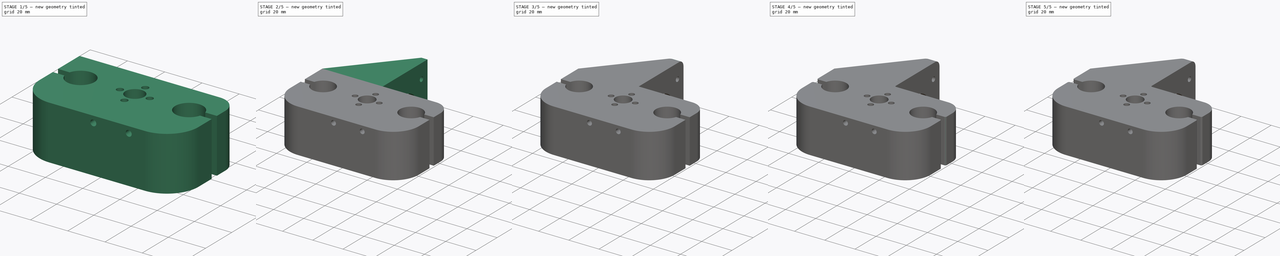
[diagram: build sequence overview — one tinted view per stage of 5, left to right]
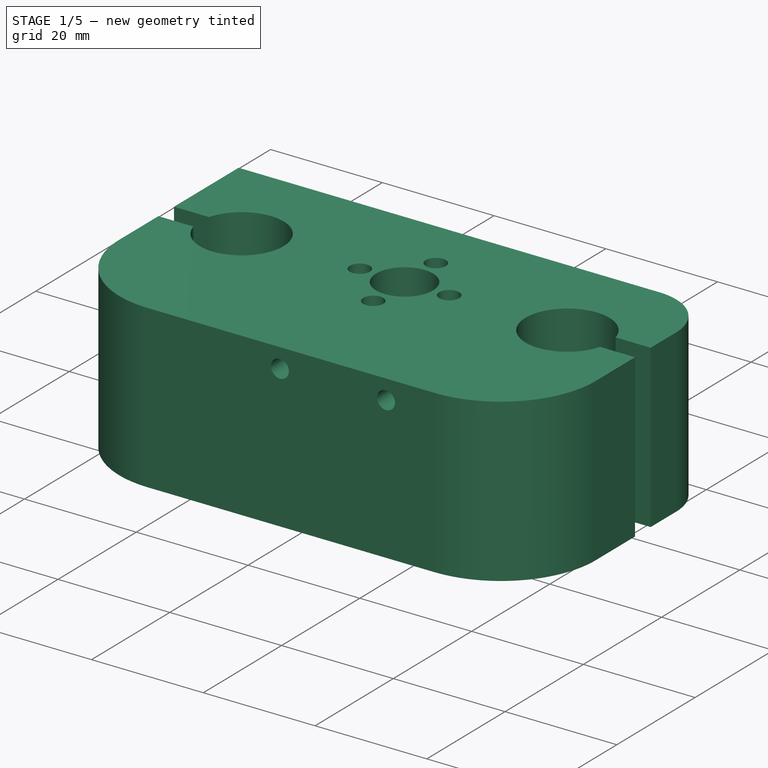
[diagram: stage 1 of 5 — iso view after this stage's code; geometry added in this stage tinted green]
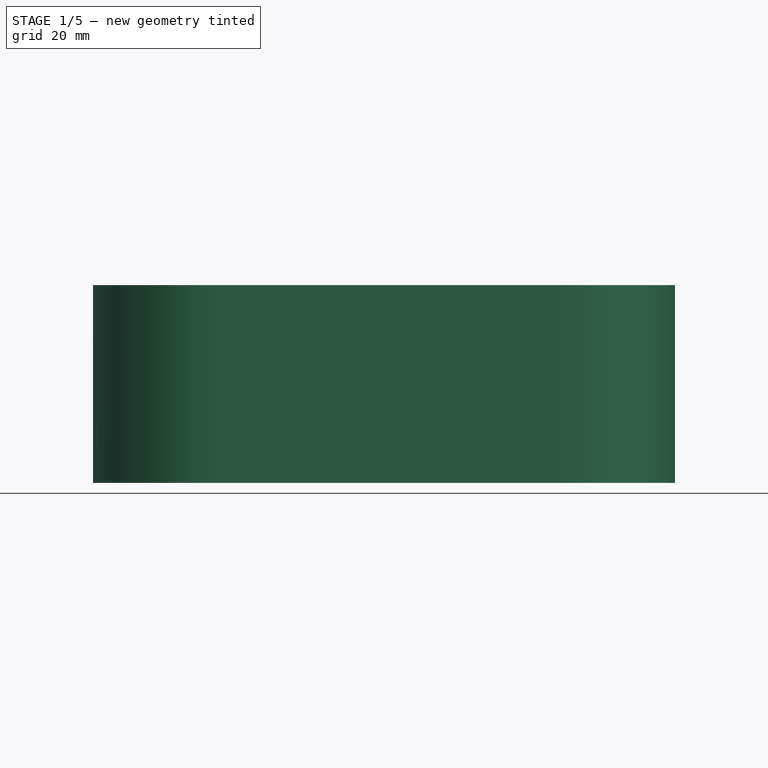
[diagram: stage 1 of 5 — front view after this stage's code; geometry added in this stage tinted green]
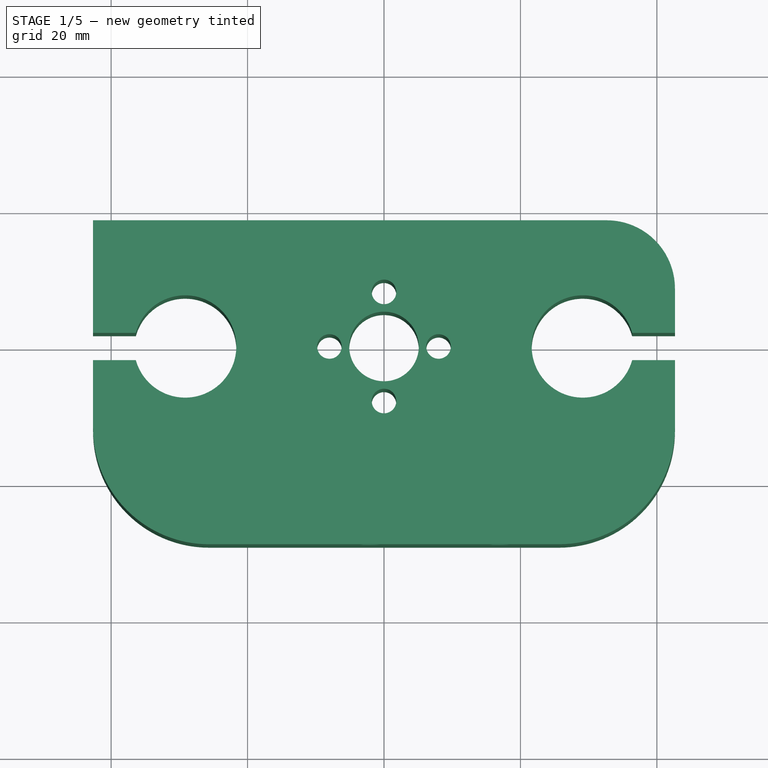
[diagram: stage 1 of 5 — top view after this stage's code; geometry added in this stage tinted green]
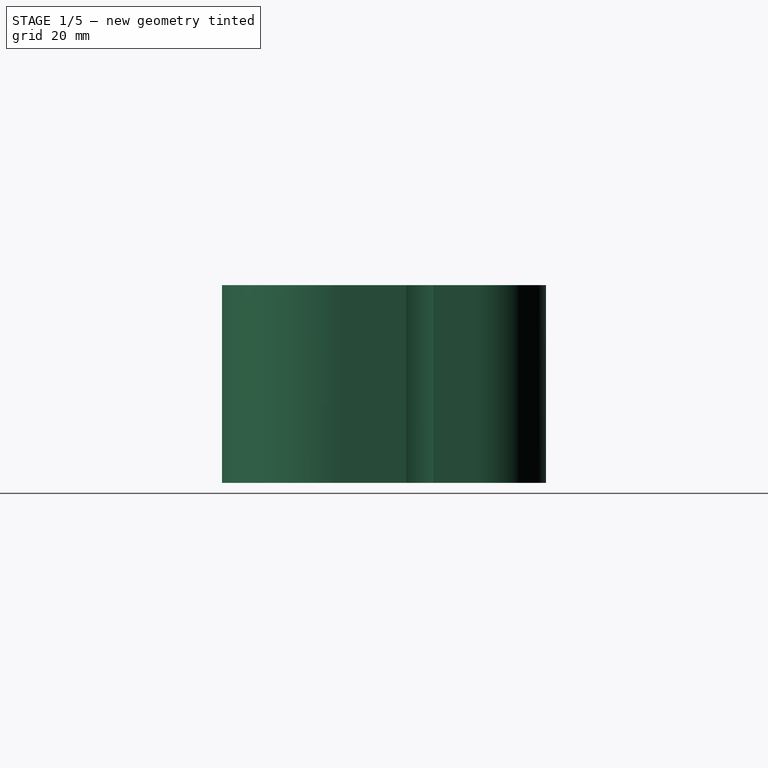
[diagram: stage 1 of 5 — right view after this stage's code; geometry added in this stage tinted green]
FCSTD DOCUMENT  (FreeCAD 1.0R39109 (Git))
Label: head
License: All rights reserved
LicenseURL: https://en.wikipedia.org/wiki/All_rights_reserved
objects: Sketcher::SketchObject×10, PartDesign::Fillet×7, PartDesign::Pad×4, PartDesign::Pocket×4, PartDesign::Chamfer×1, PartDesign::Body×1
note: 69 computed .brp shape members not serialized (recipe doc carries the construction recipe); baked Part::Feature solids carry a one-line shape summary decoded from their .brp

FEATURE [Sketcher::SketchObject] Sketch
  ArcFitTolerance = 1e-06
  AttachmentSupport = -> [XY_Plane]
  FullyConstrained = true
  MakeInternals = false
  MapMode = 5
  sketch-geometry (53):
    g0: Circle CenterX=0 CenterY=0 CenterZ=0 NormalX=0 NormalY=0 NormalZ=1 AngleXU=0 Radius=5.1
    g1: Circle [constr] CenterX=0 CenterY=0 CenterZ=0 NormalX=0 NormalY=0 NormalZ=1 AngleXU=0 Radius=8
    g2: Circle [constr] CenterX=0 CenterY=0 CenterZ=0 NormalX=0 NormalY=0 NormalZ=1 AngleXU=0 Radius=11
    g3: LineSegment [constr] StartX=0 StartY=0 StartZ=0 EndX=0 EndY=8 EndZ=0
    g4: LineSegment [constr] StartX=0 StartY=0 StartZ=0 EndX=0 EndY=-8 EndZ=0
    g5: LineSegment [constr] StartX=0 StartY=0 StartZ=0 EndX=8 EndY=0 EndZ=0
    g6: LineSegment [constr] StartX=0 StartY=0 StartZ=0 EndX=-8 EndY=0 EndZ=0
    g7: Circle CenterX=0 CenterY=8 CenterZ=0 NormalX=0 NormalY=0 NormalZ=1 AngleXU=0 Radius=1.8
    g8: Circle CenterX=8 CenterY=0 CenterZ=0 NormalX=0 NormalY=0 NormalZ=1 AngleXU=0 Radius=1.8
    g9: Circle CenterX=0 CenterY=-8 CenterZ=0 NormalX=0 NormalY=0 NormalZ=1 AngleXU=0 Radius=1.8
    g10: Circle CenterX=-8 CenterY=0 CenterZ=0 NormalX=0 NormalY=0 NormalZ=1 AngleXU=0 Radius=1.8
    g11: LineSegment [constr] StartX=0 StartY=0 StartZ=0 EndX=-29.15 EndY=0 EndZ=0
    g12: Circle CenterX=-29.15 CenterY=0 CenterZ=0 NormalX=0 NormalY=0 NormalZ=1 AngleXU=0 Radius=7.5
    g13: LineSegment [constr] StartX=0 StartY=0 StartZ=0 EndX=0 EndY=-29 EndZ=0
    g14: LineSegment [constr] StartX=0 StartY=0 StartZ=0 EndX=29.15 EndY=0 EndZ=0
    g15: Circle CenterX=29.15 CenterY=0 CenterZ=0 NormalX=0 NormalY=0 NormalZ=1 AngleXU=0 Radius=7.5
    g16: LineSegment [constr] StartX=-29.15 StartY=0 StartZ=0 EndX=-42.65 EndY=0 EndZ=0
    g17: LineSegment [constr] StartX=29.15 StartY=0 StartZ=0 EndX=42.65 EndY=0 EndZ=0
    g18: LineSegment [constr] StartX=42.65 StartY=0 StartZ=0 EndX=42.65 EndY=2 EndZ=0
    g19: LineSegment [constr] StartX=-42.65 StartY=0 StartZ=0 EndX=-42.65 EndY=2 EndZ=0
    g20: LineSegment [constr] StartX=-42.65 StartY=2 StartZ=0 EndX=-36.3784 EndY=2 EndZ=0
    g21: LineSegment [constr] StartX=-42.65 StartY=2 StartZ=0 EndX=-42.65 EndY=-2 EndZ=0
    g22: LineSegment [constr] StartX=-42.65 StartY=-2 StartZ=0 EndX=-36.3784 EndY=-2 EndZ=0
    g23: LineSegment [constr] StartX=42.65 StartY=2 StartZ=0 EndX=36.3784 EndY=2 EndZ=0
    g24: LineSegment [constr] StartX=42.65 StartY=2 StartZ=0 EndX=42.65 EndY=-2 EndZ=0
    g25: LineSegment [constr] StartX=42.65 StartY=-2 StartZ=0 EndX=36.3784 EndY=-2 EndZ=0
    g26: LineSegment [constr] StartX=36.3784 StartY=2 StartZ=0 EndX=36.3784 EndY=-2 EndZ=0
    g27: LineSegment [constr] StartX=-36.3784 StartY=2 StartZ=0 EndX=-36.3784 EndY=-2 EndZ=0
    g28: LineSegment StartX=0 StartY=-29 StartZ=0 EndX=25 EndY=-29 EndZ=0
    g29: LineSegment StartX=0 StartY=-29 StartZ=0 EndX=-25 EndY=-29 EndZ=0
    g30: LineSegment [constr] StartX=0 StartY=0 StartZ=0 EndX=0 EndY=18.5 EndZ=0
    g31: LineSegment StartX=42.65 StartY=0 StartZ=0 EndX=42.65 EndY=8.5 EndZ=0
    g32: LineSegment StartX=-42.65 StartY=0 StartZ=0 EndX=-42.65 EndY=18.5 EndZ=0
    g33: LineSegment StartX=-42.65 StartY=18.5 StartZ=0 EndX=0 EndY=18.5 EndZ=0
    g34: LineSegment StartX=0 StartY=18.5 StartZ=0 EndX=32.65 EndY=18.5 EndZ=0
    g35: LineSegment StartX=42.65 StartY=0 StartZ=0 EndX=42.65 EndY=-13 EndZ=0
    g36: LineSegment StartX=26.65 StartY=-29 StartZ=0 EndX=25 EndY=-29 EndZ=0
    g37: LineSegment StartX=-42.65 StartY=0 StartZ=0 EndX=-42.65 EndY=-13 EndZ=0
    g38: LineSegment StartX=-26.65 StartY=-29 StartZ=0 EndX=-25 EndY=-29 EndZ=0
    g39: ArcOfCircle CenterX=-26.65 CenterY=-13 CenterZ=0 NormalX=0 NormalY=0 NormalZ=1 AngleXU=0 Radius=16 StartAngle=3.14159 EndAngle=4.71239
    g40: GeomPoint [constr] X=-42.65 Y=-29 Z=0
    g41: ArcOfCircle CenterX=26.65 CenterY=-13 CenterZ=0 NormalX=0 NormalY=0 NormalZ=1 AngleXU=0 Radius=16 StartAngle=4.71239 EndAngle=6.28319
    g42: GeomPoint [constr] X=42.65 Y=-29 Z=0
    g43: LineSegment StartX=-42.65 StartY=18.5 StartZ=0 EndX=-6.65 EndY=18.5 EndZ=0
    g44: LineSegment StartX=-6.65 StartY=18.5 StartZ=0 EndX=-2.65 EndY=18.5 EndZ=0
    g45: LineSegment [constr] StartX=-2.65 StartY=18.5 StartZ=0 EndX=-2.65 EndY=62 EndZ=0
    g46: LineSegment [constr] StartX=-2.65 StartY=62 StartZ=0 EndX=-6.65 EndY=62 EndZ=0
    g47: LineSegment [constr] StartX=-6.65 StartY=62 StartZ=0 EndX=-6.65 EndY=18.5 EndZ=0
    g48: LineSegment StartX=-42.65 StartY=18.5 StartZ=0 EndX=-6.65 EndY=18.5 EndZ=0
    g49: LineSegment StartX=-2.65 StartY=18.5 StartZ=0 EndX=0 EndY=18.5 EndZ=0
    g50: LineSegment [constr] StartX=-6.65 StartY=62 StartZ=0 EndX=-42.65 EndY=18.5 EndZ=0
    g51: ArcOfCircle CenterX=32.65 CenterY=8.5 CenterZ=0 NormalX=0 NormalY=0 NormalZ=1 AngleXU=0 Radius=10 StartAngle=0 EndAngle=1.5708
    g52: GeomPoint [constr] X=42.65 Y=18.5 Z=0
  constraints (134):
    c: Diameter(g0) = 10.2
    c: Coincident(g0,g-1)
    c: Diameter(g1) = 16
    c: Coincident(g1,g0)
    c: Diameter(g2) = 22
    c: Coincident(g2,g0)
    c: Coincident(g3,g0)
    c: PointOnObject(g3,g1)
    c: Vertical(g3)
    c: Coincident(g4,g0)
    c: PointOnObject(g4,g1)
    c: Vertical(g4)
    c: Coincident(g5,g0)
    c: PointOnObject(g5,g1)
    c: Horizontal(g5)
    c: Coincident(g6,g0)
    c: PointOnObject(g6,g1)
    c: Horizontal(g6)
    c: Diameter(g7) = 3.6
    c: Coincident(g7,g3)
    c: Diameter(g8) = 3.6
    c: Coincident(g8,g5)
    c: Diameter(g9) = 3.6
    c: Coincident(g9,g4)
    c: Diameter(g10) = 3.6
    c: Coincident(g10,g6)
    c: Distance(g11) = 29.15
    c: Coincident(g11,g0)
    c: PointOnObject(g11,g-1)
    c: Diameter(g12) = 15
    c: Coincident(g12,g11)
    c: Distance(g13) = 29
    c: Coincident(g13,g0)
    c: PointOnObject(g13,g-2)
    c: Distance(g14) = 29.15
    c: Coincident(g14,g0)
    c: PointOnObject(g14,g-1)
    c: Diameter(g15) = 15
    c: Coincident(g15,g14)
    c: Distance(g16) = 13.5
    c: Coincident(g16,g11)
    c: PointOnObject(g16,g-1)
    c: Distance(g17) = 13.5
    c: Coincident(g17,g14)
    c: PointOnObject(g17,g-1)
    c: Distance(g18) = 2
    c: Coincident(g18,g17)
    c: Vertical(g18)
    c: Distance(g19) = 2
    c: Coincident(g19,g16)
    c: Vertical(g19)
    c: Coincident(g20,g19)
    c: PointOnObject(g20,g12)
    c: Horizontal(g20)
    c: Distance(g21) = 4
    c: Coincident(g21,g19)
    c: Vertical(g21)
    c: Coincident(g22,g21)
    c: PointOnObject(g22,g12)
    c: Horizontal(g22)
    c: Coincident(g23,g18)
    c: PointOnObject(g23,g15)
    c: Horizontal(g23)
    c: Distance(g24) = 4
    c: Coincident(g24,g18)
    c: Vertical(g24)
    c: Coincident(g25,g24)
    c: PointOnObject(g25,g15)
    c: Horizontal(g25)
    c: Coincident(g26,g23)
    c: Coincident(g26,g25)
    c: Coincident(g27,g20)
    c: Coincident(g27,g22)
    c: Distance(g28) = 25
    c: Coincident(g28,g13)
    c: Horizontal(g28)
    c: Distance(g29) = 25
    c: Coincident(g29,g13)
    c: Horizontal(g29)
    c: Distance(g30) = 18.5
    c: Coincident(g30,g0)
    c: PointOnObject(g30,g-2)
    c: Distance(g31,g52) = 18.5
    c: Coincident(g31,g17)
    c: Vertical(g31)
    c: Distance(g32) = 18.5
    c: Coincident(g32,g16)
    c: Vertical(g32)
    c: Coincident(g33,g32)
    c: Coincident(g33,g30)
    c: Coincident(g34,g30)
    c: Distance(g35,g42) = 29
    c: Coincident(g35,g17)
    c: Vertical(g35)
    c: Coincident(g36,g28)
    c: Distance(g37,g40) = 29
    c: Coincident(g37,g16)
    c: Vertical(g37)
    c: Coincident(g38,g29)
    c: PointOnObject(g40,g37)
    c: PointOnObject(g40,g38)
    c: Tangent(g37,g39) = -1.5708
    c: Tangent(g38,g39) = -1.5708
    c: PointOnObject(g42,g36)
    c: PointOnObject(g42,g35)
    c: Tangent(g36,g41) = 1.5708
    c: Tangent(g35,g41) = 1.5708
    c: DistanceX(g37,g39) = 16
    c: Distance(g41,g35) = 16
    c: Distance(g43) = 36
    c: Coincident(g43,g32)
    c: PointOnObject(g43,g33)
    c: Coincident(g44,g45)
    c: Coincident(g45,g46)
    c: Coincident(g46,g47)
    c: Coincident(g47,g44)
    c: Horizontal(g44)
    c: Horizontal(g46)
    c: Vertical(g45)
    c: Vertical(g47)
    c: Distance(g45,g47) = 4
    c: Distance(g44,g46) = 43.5
    c: Coincident(g44,g43)
    c: Coincident(g48,g32)
    c: Coincident(g48,g43)
    c: Coincident(g49,g44)
    c: Coincident(g49,g30)
    c: Coincident(g50,g46)
    c: Coincident(g50,g32)
    c: PointOnObject(g52,g34)
    c: PointOnObject(g52,g31)
    c: Tangent(g34,g51) = 1.5708
    c: Tangent(g31,g51) = -1.5708
    c: Distance(g51,g31) = 10
FEATURE [Sketcher::SketchObject] Sketch001
  ArcFitTolerance = 1e-06
  AttachmentSupport = -> [XY_Plane]
  FullyConstrained = true
  MakeInternals = false
  MapMode = 5
  sketch-geometry (35):
    g0: Circle CenterX=0 CenterY=0 CenterZ=0 NormalX=0 NormalY=0 NormalZ=1 AngleXU=0 Radius=5.1
    g1: Circle [constr] CenterX=0 CenterY=0 CenterZ=0 NormalX=0 NormalY=0 NormalZ=1 AngleXU=0 Radius=8
    g2: Circle [constr] CenterX=0 CenterY=0 CenterZ=0 NormalX=0 NormalY=0 NormalZ=1 AngleXU=0 Radius=11
    g3: LineSegment [constr] StartX=0 StartY=0 StartZ=0 EndX=0 EndY=8 EndZ=0
    g4: LineSegment [constr] StartX=0 StartY=0 StartZ=0 EndX=8 EndY=0 EndZ=0
    g5: LineSegment [constr] StartX=0 StartY=0 StartZ=0 EndX=-8 EndY=0 EndZ=0
    g6: LineSegment [constr] StartX=0 StartY=0 StartZ=0 EndX=0 EndY=-8 EndZ=0
    g7: Circle CenterX=0 CenterY=8 CenterZ=0 NormalX=0 NormalY=0 NormalZ=1 AngleXU=0 Radius=1.8
    g8: Circle CenterX=8 CenterY=0 CenterZ=0 NormalX=0 NormalY=0 NormalZ=1 AngleXU=0 Radius=1.8
    g9: Circle CenterX=-8 CenterY=0 CenterZ=0 NormalX=0 NormalY=0 NormalZ=1 AngleXU=0 Radius=1.8
    g10: Circle CenterX=0 CenterY=-8 CenterZ=0 NormalX=0 NormalY=0 NormalZ=1 AngleXU=0 Radius=1.8
    g11: LineSegment [constr] StartX=0 StartY=0 StartZ=0 EndX=29.15 EndY=0 EndZ=0
    g12: LineSegment [constr] StartX=0 StartY=0 StartZ=0 EndX=-29.15 EndY=0 EndZ=0
    g13: Circle CenterX=-29.15 CenterY=0 CenterZ=0 NormalX=0 NormalY=0 NormalZ=1 AngleXU=0 Radius=7.5
    g14: Circle CenterX=29.15 CenterY=0 CenterZ=0 NormalX=0 NormalY=0 NormalZ=1 AngleXU=0 Radius=7.5
    g15: LineSegment [constr] StartX=0 StartY=0 StartZ=0 EndX=0 EndY=-29 EndZ=0
    g16: LineSegment StartX=0 StartY=-29 StartZ=0 EndX=25 EndY=-29 EndZ=0
    g17: LineSegment StartX=0 StartY=-29 StartZ=0 EndX=-25 EndY=-29 EndZ=0
    g18: LineSegment [constr] StartX=0 StartY=0 StartZ=0 EndX=0 EndY=18.5 EndZ=0
    g19: LineSegment [constr] StartX=29.15 StartY=0 StartZ=0 EndX=42.65 EndY=0 EndZ=0
    g20: LineSegment [constr] StartX=-29.15 StartY=0 StartZ=0 EndX=-42.65 EndY=0 EndZ=0
    g21: LineSegment StartX=-42.65 StartY=0 StartZ=0 EndX=-42.65 EndY=18.5 EndZ=0
    g22: LineSegment StartX=42.65 StartY=0 StartZ=0 EndX=42.65 EndY=8.5 EndZ=0
    g23: LineSegment StartX=32.65 StartY=18.5 StartZ=0 EndX=0 EndY=18.5 EndZ=0
    g24: LineSegment StartX=0 StartY=18.5 StartZ=0 EndX=-42.65 EndY=18.5 EndZ=0
    g25: LineSegment StartX=-42.65 StartY=0 StartZ=0 EndX=-42.65 EndY=-12 EndZ=0
    g26: LineSegment StartX=-25.65 StartY=-29 StartZ=0 EndX=-25 EndY=-29 EndZ=0
    g27: LineSegment StartX=42.65 StartY=0 StartZ=0 EndX=42.65 EndY=-12 EndZ=0
    g28: LineSegment StartX=25.65 StartY=-29 StartZ=0 EndX=25 EndY=-29 EndZ=0
    g29: ArcOfCircle CenterX=25.65 CenterY=-12 CenterZ=0 NormalX=0 NormalY=0 NormalZ=1 AngleXU=0 Radius=17 StartAngle=4.71239 EndAngle=6.28319
    g30: GeomPoint [constr] X=42.65 Y=-29 Z=0
    g31: ArcOfCircle CenterX=-25.65 CenterY=-12 CenterZ=0 NormalX=0 NormalY=0 NormalZ=1 AngleXU=0 Radius=17 StartAngle=3.14159 EndAngle=4.71239
    g32: GeomPoint [constr] X=-42.65 Y=-29 Z=0
    g33: ArcOfCircle CenterX=32.65 CenterY=8.5 CenterZ=0 NormalX=0 NormalY=0 NormalZ=1 AngleXU=0 Radius=10 StartAngle=0 EndAngle=1.5708
    g34: GeomPoint [constr] X=42.65 Y=18.5 Z=0
  constraints (86):
    c: Diameter(g0) = 10.2
    c: Coincident(g0,g-1)
    c: Diameter(g1) = 16
    c: Coincident(g1,g0)
    c: Diameter(g2) = 22
    c: Coincident(g2,g0)
    c: Coincident(g3,g0)
    c: PointOnObject(g3,g1)
    c: Vertical(g3)
    c: Coincident(g4,g0)
    c: PointOnObject(g4,g1)
    c: Horizontal(g4)
    c: Coincident(g5,g0)
    c: PointOnObject(g5,g1)
    c: Horizontal(g5)
    c: Coincident(g6,g0)
    c: PointOnObject(g6,g1)
    c: Vertical(g6)
    c: Diameter(g7) = 3.6
    c: Coincident(g7,g3)
    c: Diameter(g8) = 3.6
    c: Coincident(g8,g4)
    c: Diameter(g9) = 3.6
    c: Coincident(g9,g5)
    c: Diameter(g10) = 3.6
    c: Coincident(g10,g6)
    c: Distance(g11) = 29.15
    c: Coincident(g11,g0)
    c: PointOnObject(g11,g-1)
    c: Distance(g12) = 29.15
    c: Coincident(g12,g0)
    c: PointOnObject(g12,g-1)
    c: Diameter(g13) = 15
    c: Coincident(g13,g12)
    c: Diameter(g14) = 15
    c: Coincident(g14,g11)
    c: Distance(g15) = 29
    c: Coincident(g15,g0)
    c: PointOnObject(g15,g-2)
    c: Distance(g16) = 25
    c: Coincident(g16,g15)
    c: Horizontal(g16)
    c: Distance(g17) = 25
    c: Coincident(g17,g15)
    c: Horizontal(g17)
    c: Distance(g18) = 18.5
    c: Coincident(g18,g0)
    c: PointOnObject(g18,g-2)
    c: Distance(g19) = 13.5
    c: Coincident(g19,g11)
    c: PointOnObject(g19,g-1)
    c: Distance(g20) = 13.5
    c: Coincident(g20,g12)
    c: PointOnObject(g20,g-1)
    c: Distance(g21) = 18.5
    c: Coincident(g21,g20)
    c: Vertical(g21)
    c: Distance(g22,g34) = 18.5
    c: Coincident(g22,g19)
    c: Vertical(g22)
    c: Coincident(g23,g18)
    c: Coincident(g24,g18)
    c: Coincident(g24,g21)
    c: Distance(g25,g32) = 29
    c: Coincident(g25,g20)
    c: Vertical(g25)
    c: Coincident(g26,g17)
    c: Distance(g27,g30) = 29
    c: Coincident(g27,g19)
    c: Vertical(g27)
    c: Coincident(g28,g16)
    c: PointOnObject(g30,g27)
    c: PointOnObject(g30,g28)
    c: Tangent(g27,g29) = 1.5708
    c: Tangent(g28,g29) = 1.5708
    c: PointOnObject(g32,g25)
    c: PointOnObject(g32,g26)
    c: Tangent(g25,g31) = -1.5708
    c: Tangent(g26,g31) = -1.5708
    c: DistanceX(g25,g31) = 17
    c: Distance(g29,g27) = 17
    c: PointOnObject(g34,g22)
    c: PointOnObject(g34,g23)
    c: Tangent(g22,g33) = -1.5708
    c: Tangent(g23,g33) = -1.5708
    c: DistanceX(g33,g22) = 10
FEATURE [PartDesign::Pad] Pad
  Direction = (0,0,1)
  Length = 29
  Length2 = 10
  Profile = -> Sketch001
  ReferenceAxis = -> Sketch001 [N_Axis]
  Refine = true
  Reversed = true
  Suppressed = false
  Type = 0
FEATURE [Sketcher::SketchObject] Sketch002
  ArcFitTolerance = 1e-06
  AttachmentSupport = -> [Pad]
  FullyConstrained = true
  MakeInternals = false
  MapMode = 5
  sketch-geometry (45):
    g0: Circle [constr] CenterX=0 CenterY=0 CenterZ=0 NormalX=0 NormalY=0 NormalZ=1 AngleXU=0 Radius=5.1
    g1: Circle [constr] CenterX=0 CenterY=0 CenterZ=0 NormalX=0 NormalY=0 NormalZ=1 AngleXU=0 Radius=8
    g2: Circle [constr] CenterX=0 CenterY=0 CenterZ=0 NormalX=0 NormalY=0 NormalZ=1 AngleXU=0 Radius=11
    g3: LineSegment [constr] StartX=0 StartY=0 StartZ=0 EndX=0 EndY=8 EndZ=0
    g4: LineSegment [constr] StartX=0 StartY=0 StartZ=0 EndX=8 EndY=0 EndZ=0
    g5: LineSegment [constr] StartX=0 StartY=0 StartZ=0 EndX=-8 EndY=0 EndZ=0
    g6: LineSegment [constr] StartX=0 StartY=0 StartZ=0 EndX=0 EndY=-8 EndZ=0
    g7: Circle [constr] CenterX=0 CenterY=8 CenterZ=0 NormalX=0 NormalY=0 NormalZ=1 AngleXU=0 Radius=1.8
    g8: Circle [constr] CenterX=8 CenterY=0 CenterZ=0 NormalX=0 NormalY=0 NormalZ=1 AngleXU=0 Radius=1.8
    g9: Circle [constr] CenterX=-8 CenterY=0 CenterZ=0 NormalX=0 NormalY=0 NormalZ=1 AngleXU=0 Radius=1.8
    g10: Circle [constr] CenterX=0 CenterY=-8 CenterZ=0 NormalX=0 NormalY=0 NormalZ=1 AngleXU=0 Radius=1.8
    g11: LineSegment [constr] StartX=0 StartY=0 StartZ=0 EndX=29.15 EndY=0 EndZ=0
    g12: LineSegment [constr] StartX=0 StartY=0 StartZ=0 EndX=-29.15 EndY=0 EndZ=0
    g13: Circle [constr] CenterX=-29.15 CenterY=0 CenterZ=0 NormalX=0 NormalY=0 NormalZ=1 AngleXU=0 Radius=7.5
    g14: Circle [constr] CenterX=29.15 CenterY=0 CenterZ=0 NormalX=0 NormalY=0 NormalZ=1 AngleXU=0 Radius=7.5
    g15: LineSegment [constr] StartX=0 StartY=0 StartZ=0 EndX=0 EndY=-29 EndZ=0
    g16: LineSegment [constr] StartX=0 StartY=-29 StartZ=0 EndX=25 EndY=-29 EndZ=0
    g17: LineSegment [constr] StartX=0 StartY=-29 StartZ=0 EndX=-25 EndY=-29 EndZ=0
    g18: LineSegment [constr] StartX=0 StartY=0 StartZ=0 EndX=0 EndY=18.5 EndZ=0
    g19: LineSegment [constr] StartX=29.15 StartY=0 StartZ=0 EndX=42.65 EndY=0 EndZ=0
    g20: LineSegment [constr] StartX=-29.15 StartY=0 StartZ=0 EndX=-42.65 EndY=0 EndZ=0
    g21: LineSegment [constr] StartX=-42.65 StartY=0 StartZ=0 EndX=-42.65 EndY=18.5 EndZ=0
    g22: LineSegment [constr] StartX=42.65 StartY=0 StartZ=0 EndX=42.65 EndY=8.5 EndZ=0
    g23: LineSegment [constr] StartX=32.65 StartY=18.5 StartZ=0 EndX=0 EndY=18.5 EndZ=0
    g24: LineSegment [constr] StartX=0 StartY=18.5 StartZ=0 EndX=-42.65 EndY=18.5 EndZ=0
    g25: LineSegment [constr] StartX=-42.65 StartY=0 StartZ=0 EndX=-42.65 EndY=-12 EndZ=0
    g26: LineSegment [constr] StartX=-25.65 StartY=-29 StartZ=0 EndX=-25 EndY=-29 EndZ=0
    g27: LineSegment [constr] StartX=42.65 StartY=0 StartZ=0 EndX=42.65 EndY=-12 EndZ=0
    g28: LineSegment [constr] StartX=25.65 StartY=-29 StartZ=0 EndX=25 EndY=-29 EndZ=0
    g29: ArcOfCircle [constr] CenterX=25.65 CenterY=-12 CenterZ=0 NormalX=0 NormalY=0 NormalZ=1 AngleXU=0 Radius=17 StartAngle=4.71239 EndAngle=6.28319
    g30: GeomPoint [constr] X=42.65 Y=-29 Z=0
    g31: ArcOfCircle [constr] CenterX=-25.65 CenterY=-12 CenterZ=0 NormalX=0 NormalY=0 NormalZ=1 AngleXU=0 Radius=17 StartAngle=3.14159 EndAngle=4.71239
    g32: GeomPoint [constr] X=-42.65 Y=-29 Z=0
    g33: ArcOfCircle [constr] CenterX=32.65 CenterY=8.5 CenterZ=0 NormalX=0 NormalY=0 NormalZ=1 AngleXU=0 Radius=10 StartAngle=0 EndAngle=1.5708
    g34: GeomPoint [constr] X=42.65 Y=18.5 Z=0
    g35: LineSegment [constr] StartX=42.65 StartY=0 StartZ=0 EndX=42.65 EndY=2 EndZ=0
    g36: LineSegment StartX=42.65 StartY=2 StartZ=0 EndX=35.65 EndY=2 EndZ=0
    g37: LineSegment StartX=35.65 StartY=2 StartZ=0 EndX=35.65 EndY=-2 EndZ=0
    g38: LineSegment StartX=35.65 StartY=-2 StartZ=0 EndX=42.65 EndY=-2 EndZ=0
    g39: LineSegment StartX=42.65 StartY=-2 StartZ=0 EndX=42.65 EndY=2 EndZ=0
    g40: LineSegment [constr] StartX=-42.65 StartY=0 StartZ=0 EndX=-42.65 EndY=2 EndZ=0
    g41: LineSegment StartX=-42.65 StartY=2 StartZ=0 EndX=-42.65 EndY=-2 EndZ=0
    g42: LineSegment StartX=-42.65 StartY=-2 StartZ=0 EndX=-35.65 EndY=-2 EndZ=0
    g43: LineSegment StartX=-35.65 StartY=-2 StartZ=0 EndX=-35.65 EndY=2 EndZ=0
    g44: LineSegment StartX=-35.65 StartY=2 StartZ=0 EndX=-42.65 EndY=2 EndZ=0
  constraints (114):
    c: Diameter(g0) = 10.2
    c: Coincident(g0,g-1)
    c: Diameter(g1) = 16
    c: Coincident(g1,g0)
    c: Diameter(g2) = 22
    c: Coincident(g2,g0)
    c: Coincident(g3,g0)
    c: PointOnObject(g3,g1)
    c: Vertical(g3)
    c: Coincident(g4,g0)
    c: PointOnObject(g4,g1)
    c: Horizontal(g4)
    c: Coincident(g5,g0)
    c: PointOnObject(g5,g1)
    c: Horizontal(g5)
    c: Coincident(g6,g0)
    c: PointOnObject(g6,g1)
    c: Vertical(g6)
    c: Diameter(g7) = 3.6
    c: Coincident(g7,g3)
    c: Diameter(g8) = 3.6
    c: Coincident(g8,g4)
    c: Diameter(g9) = 3.6
    c: Coincident(g9,g5)
    c: Diameter(g10) = 3.6
    c: Coincident(g10,g6)
    c: Distance(g11) = 29.15
    c: Coincident(g11,g0)
    c: PointOnObject(g11,g-1)
    c: Distance(g12) = 29.15
    c: Coincident(g12,g0)
    c: PointOnObject(g12,g-1)
    c: Diameter(g13) = 15
    c: Coincident(g13,g12)
    c: Diameter(g14) = 15
    c: Coincident(g14,g11)
    c: Distance(g15) = 29
    c: Coincident(g15,g0)
    c: PointOnObject(g15,g-2)
    c: Distance(g16) = 25
    c: Coincident(g16,g15)
    c: Horizontal(g16)
    c: Distance(g17) = 25
    c: Coincident(g17,g15)
    c: Horizontal(g17)
    c: Distance(g18) = 18.5
    c: Coincident(g18,g0)
    c: PointOnObject(g18,g-2)
    c: Distance(g19) = 13.5
    c: Coincident(g19,g11)
    c: PointOnObject(g19,g-1)
    c: Distance(g20) = 13.5
    c: Coincident(g20,g12)
    c: PointOnObject(g20,g-1)
    c: Distance(g21) = 18.5
    c: Coincident(g21,g20)
    c: Vertical(g21)
    c: Distance(g22,g34) = 18.5
    c: Coincident(g22,g19)
    c: Vertical(g22)
    c: Coincident(g23,g18)
    c: Coincident(g24,g18)
    c: Coincident(g24,g21)
    c: Distance(g25,g32) = 29
    c: Coincident(g25,g20)
    c: Vertical(g25)
    c: Coincident(g26,g17)
    c: Distance(g27,g30) = 29
    c: Coincident(g27,g19)
    c: Vertical(g27)
    c: Coincident(g28,g16)
    c: PointOnObject(g30,g27)
    c: PointOnObject(g30,g28)
    c: Tangent(g27,g29) = 1.5708
    c: Tangent(g28,g29) = 1.5708
    c: PointOnObject(g32,g25)
    c: PointOnObject(g32,g26)
    c: Tangent(g25,g31) = -1.5708
    c: Tangent(g26,g31) = -1.5708
    c: DistanceX(g25,g31) = 17
    c: Distance(g29,g27) = 17
    c: PointOnObject(g34,g22)
    c: PointOnObject(g34,g23)
    c: Tangent(g22,g33) = -1.5708
    c: Tangent(g23,g33) = -1.5708
    c: DistanceX(g33,g22) = 10
    c: Distance(g35) = 2
    c: Coincident(g35,g19)
    c: PointOnObject(g35,g22)
    c: Coincident(g36,g37)
    c: Coincident(g37,g38)
    c: Coincident(g38,g39)
    c: Coincident(g39,g36)
    c: Horizontal(g36)
    c: Horizontal(g38)
    c: Vertical(g37)
    c: Vertical(g39)
    c: Distance(g37,g39) = 7
    c: Distance(g36,g38) = 4
    c: Coincident(g36,g35)
    c: Distance(g40) = 2
    c: Coincident(g40,g20)
    c: PointOnObject(g40,g21)
    c: Coincident(g41,g42)
    c: Coincident(g42,g43)
    c: Coincident(g43,g44)
    c: Coincident(g44,g41)
    c: Vertical(g41)
    c: Vertical(g43)
    c: Horizontal(g42)
    c: Horizontal(g44)
    c: Distance(g41,g43) = 7
    c: Distance(g42,g44) = 4
    c: Coincident(g41,g40)
FEATURE [PartDesign::Pocket] Pocket
  BaseFeature = -> Pad
  Direction = (0,0,-1)
  Length = 29
  Length2 = 5
  Profile = -> Sketch002
  ReferenceAxis = -> Sketch002 [N_Axis]
  Refine = true
  Suppressed = false
  Type = 0
FEATURE [Sketcher::SketchObject] Sketch003
  ArcFitTolerance = 1e-06
  AttachmentSupport = -> [Pocket]
  FullyConstrained = true
  MakeInternals = false
  MapMode = 5
  Placement = pos=(0,-29,0) rot=(1,0,0;1.5708rad)
  sketch-geometry (12):
    g0: LineSegment [constr] StartX=0 StartY=0 StartZ=0 EndX=0 EndY=-16.2 EndZ=0
    g1: LineSegment [constr] StartX=-19.7 StartY=-16.2 StartZ=0 EndX=19.7 EndY=-16.2 EndZ=0
    g2: LineSegment [constr] StartX=19.7 StartY=-16.2 StartZ=0 EndX=19.7 EndY=0 EndZ=0
    g3: LineSegment [constr] StartX=19.7 StartY=0 StartZ=0 EndX=-19.7 EndY=0 EndZ=0
    g4: LineSegment [constr] StartX=-19.7 StartY=0 StartZ=0 EndX=-19.7 EndY=-16.2 EndZ=0
    g5: GeomPoint [constr] X=0 Y=-8.1 Z=0
    g6: LineSegment [constr] StartX=-19.7 StartY=0 StartZ=0 EndX=-2 EndY=0 EndZ=0
    g7: LineSegment [constr] StartX=-2 StartY=0 StartZ=0 EndX=17 EndY=0 EndZ=0
    g8: LineSegment [constr] StartX=-2 StartY=0 StartZ=0 EndX=-2 EndY=-3.5 EndZ=0
    g9: LineSegment [constr] StartX=17 StartY=0 StartZ=0 EndX=17 EndY=-3.5 EndZ=0
    g10: Circle CenterX=-2 CenterY=-3.5 CenterZ=0 NormalX=0 NormalY=0 NormalZ=1 AngleXU=0 Radius=1.6
    g11: Circle CenterX=17 CenterY=-3.5 CenterZ=0 NormalX=0 NormalY=0 NormalZ=1 AngleXU=0 Radius=1.6
  constraints (31):
    c: Distance(g0) = 16.2
    c: Coincident(g0,g-1)
    c: Vertical(g0)
    c: Coincident(g1,g2)
    c: Coincident(g2,g3)
    c: Coincident(g3,g4)
    c: Coincident(g4,g1)
    c: Horizontal(g1)
    c: Horizontal(g3)
    c: Vertical(g2)
    c: Vertical(g4)
    c: Symmetric(g3,g1,g5)
    c: Distance(g2,g4) = 39.4
    c: Symmetric(g0,g0,g5)
    c: PointOnObject(g2,g-1)
    c: Distance(g6) = 17.7
    c: Coincident(g6,g3)
    c: PointOnObject(g6,g3)
    c: Distance(g7) = 19
    c: Coincident(g7,g6)
    c: PointOnObject(g7,g3)
    c: Distance(g8) = 3.5
    c: Coincident(g8,g6)
    c: Vertical(g8)
    c: Distance(g9) = 3.5
    c: Coincident(g9,g7)
    c: Vertical(g9)
    c: Diameter(g10) = 3.2
    c: Coincident(g10,g8)
    c: Diameter(g11) = 3.2
    c: Coincident(g11,g9)
FEATURE [PartDesign::Pocket] Pocket001
  BaseFeature = -> Pocket
  Direction = (0,1,-2e-16)
  Length = 5
  Length2 = 5
  Profile = -> Sketch003
  ReferenceAxis = -> Sketch003 [N_Axis]
  Refine = true
  Suppressed = false
  Type = 0
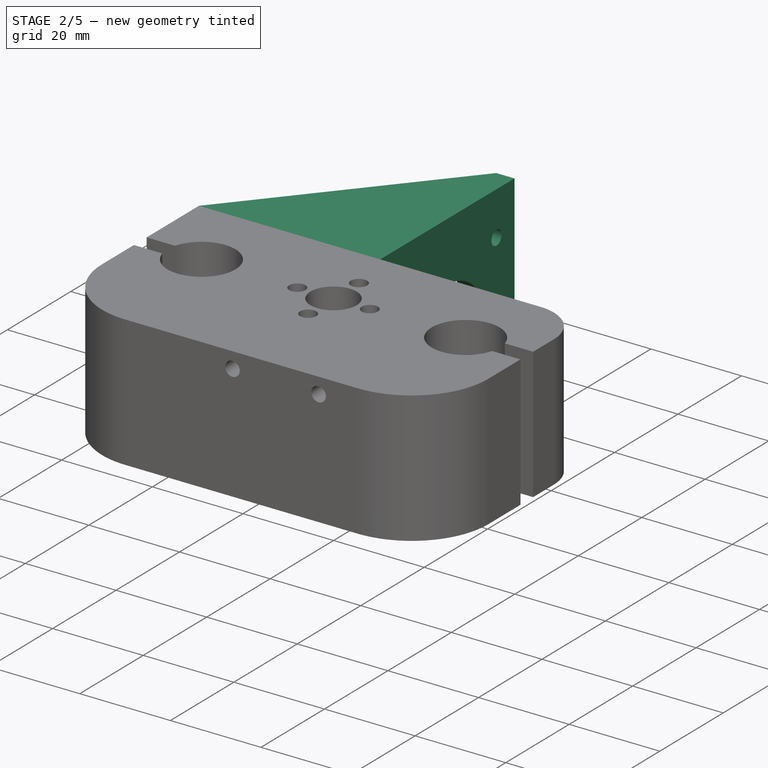
[diagram: stage 2 of 5 — iso view after this stage's code; geometry added in this stage tinted green]
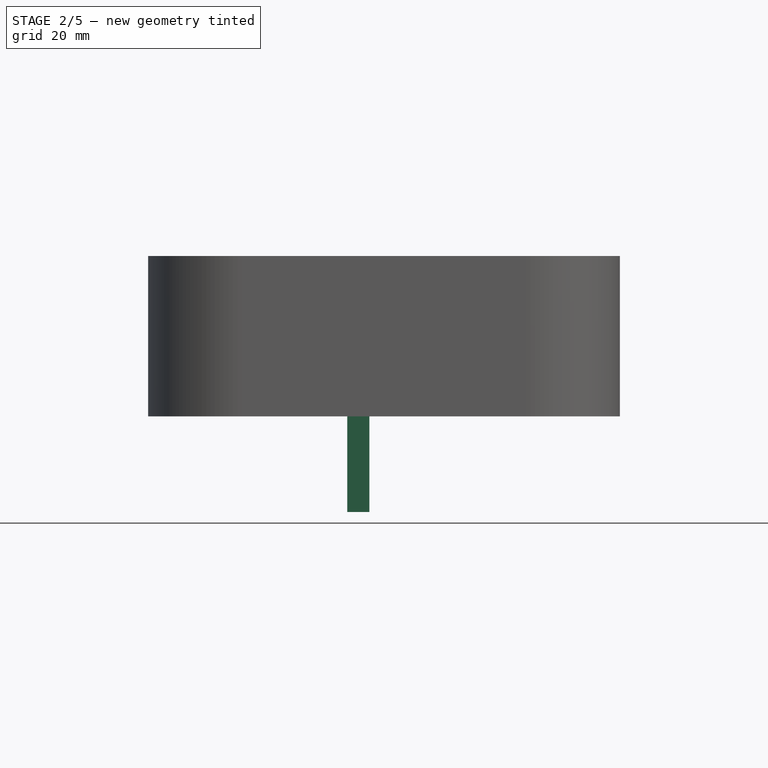
[diagram: stage 2 of 5 — front view after this stage's code; geometry added in this stage tinted green]
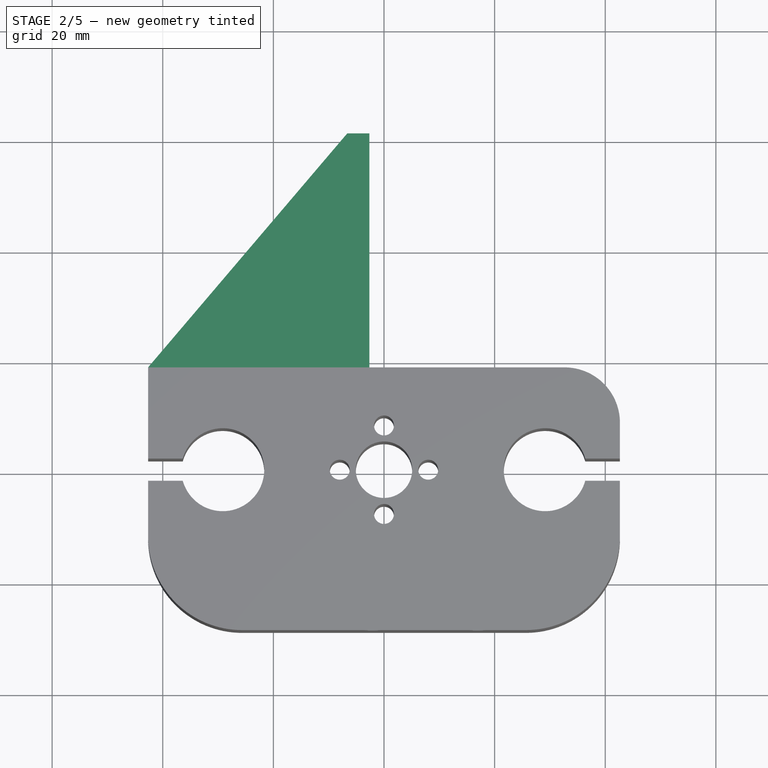
[diagram: stage 2 of 5 — top view after this stage's code; geometry added in this stage tinted green]
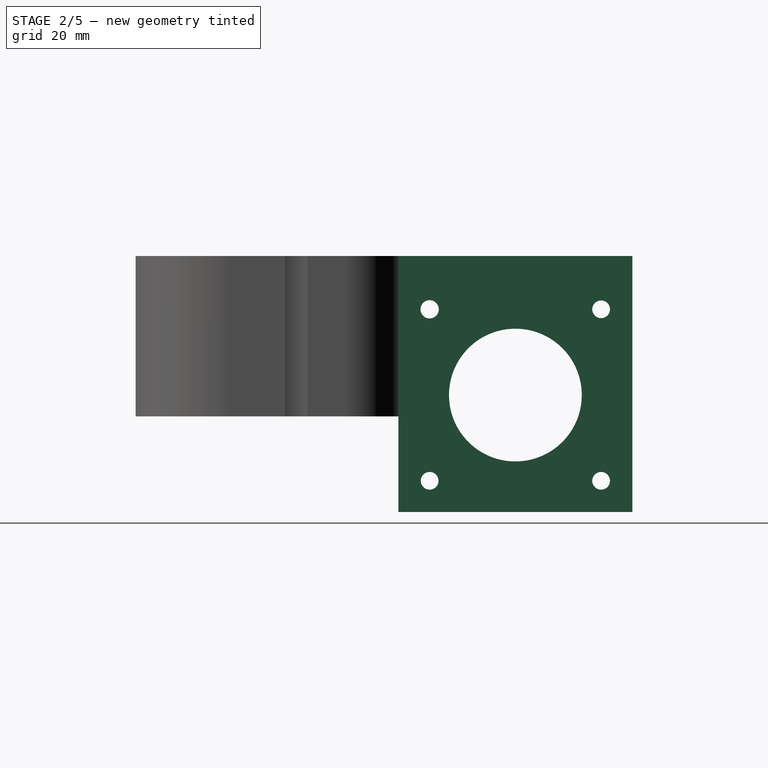
[diagram: stage 2 of 5 — right view after this stage's code; geometry added in this stage tinted green]
FEATURE [Sketcher::SketchObject] Sketch004
  ArcFitTolerance = 1e-06
  AttachmentSupport = -> [Pocket001]
  FullyConstrained = true
  MakeInternals = false
  MapMode = 5
  sketch-geometry (43):
    g0: Circle [constr] CenterX=0 CenterY=0 CenterZ=0 NormalX=0 NormalY=0 NormalZ=1 AngleXU=0 Radius=5.1
    g1: Circle [constr] CenterX=0 CenterY=0 CenterZ=0 NormalX=0 NormalY=0 NormalZ=1 AngleXU=0 Radius=8
    g2: Circle [constr] CenterX=0 CenterY=0 CenterZ=0 NormalX=0 NormalY=0 NormalZ=1 AngleXU=0 Radius=11
    g3: LineSegment [constr] StartX=0 StartY=0 StartZ=0 EndX=0 EndY=8 EndZ=0
    g4: LineSegment [constr] StartX=0 StartY=0 StartZ=0 EndX=8 EndY=0 EndZ=0
    g5: LineSegment [constr] StartX=0 StartY=0 StartZ=0 EndX=-8 EndY=0 EndZ=0
    g6: LineSegment [constr] StartX=0 StartY=0 StartZ=0 EndX=0 EndY=-8 EndZ=0
    g7: Circle [constr] CenterX=0 CenterY=8 CenterZ=0 NormalX=0 NormalY=0 NormalZ=1 AngleXU=0 Radius=1.8
    g8: Circle [constr] CenterX=8 CenterY=0 CenterZ=0 NormalX=0 NormalY=0 NormalZ=1 AngleXU=0 Radius=1.8
    g9: Circle [constr] CenterX=-8 CenterY=0 CenterZ=0 NormalX=0 NormalY=0 NormalZ=1 AngleXU=0 Radius=1.8
    g10: Circle [constr] CenterX=0 CenterY=-8 CenterZ=0 NormalX=0 NormalY=0 NormalZ=1 AngleXU=0 Radius=1.8
    g11: LineSegment [constr] StartX=0 StartY=0 StartZ=0 EndX=29.15 EndY=0 EndZ=0
    g12: LineSegment [constr] StartX=0 StartY=0 StartZ=0 EndX=-29.15 EndY=0 EndZ=0
    g13: Circle [constr] CenterX=-29.15 CenterY=0 CenterZ=0 NormalX=0 NormalY=0 NormalZ=1 AngleXU=0 Radius=7.5
    g14: Circle [constr] CenterX=29.15 CenterY=0 CenterZ=0 NormalX=0 NormalY=0 NormalZ=1 AngleXU=0 Radius=7.5
    g15: LineSegment [constr] StartX=0 StartY=0 StartZ=0 EndX=0 EndY=-29 EndZ=0
    g16: LineSegment [constr] StartX=0 StartY=-29 StartZ=0 EndX=25 EndY=-29 EndZ=0
    g17: LineSegment [constr] StartX=0 StartY=-29 StartZ=0 EndX=-25 EndY=-29 EndZ=0
    g18: LineSegment [constr] StartX=0 StartY=0 StartZ=0 EndX=0 EndY=18.5 EndZ=0
    g19: LineSegment [constr] StartX=29.15 StartY=0 StartZ=0 EndX=42.65 EndY=0 EndZ=0
    g20: LineSegment [constr] StartX=-29.15 StartY=0 StartZ=0 EndX=-42.65 EndY=0 EndZ=0
    g21: LineSegment [constr] StartX=-42.65 StartY=0 StartZ=0 EndX=-42.65 EndY=18.5 EndZ=0
    g22: LineSegment [constr] StartX=42.65 StartY=0 StartZ=0 EndX=42.65 EndY=8.5 EndZ=0
    g23: LineSegment [constr] StartX=32.65 StartY=18.5 StartZ=0 EndX=0 EndY=18.5 EndZ=0
    g24: LineSegment [constr] StartX=0 StartY=18.5 StartZ=0 EndX=-42.65 EndY=18.5 EndZ=0
    g25: LineSegment [constr] StartX=-42.65 StartY=0 StartZ=0 EndX=-42.65 EndY=-12 EndZ=0
    g26: LineSegment [constr] StartX=-25.65 StartY=-29 StartZ=0 EndX=-25 EndY=-29 EndZ=0
    g27: LineSegment [constr] StartX=42.65 StartY=0 StartZ=0 EndX=42.65 EndY=-12 EndZ=0
    g28: LineSegment [constr] StartX=25.65 StartY=-29 StartZ=0 EndX=25 EndY=-29 EndZ=0
    g29: ArcOfCircle [constr] CenterX=25.65 CenterY=-12 CenterZ=0 NormalX=0 NormalY=0 NormalZ=1 AngleXU=0 Radius=17 StartAngle=4.71239 EndAngle=6.28319
    g30: GeomPoint [constr] X=42.65 Y=-29 Z=0
    g31: ArcOfCircle [constr] CenterX=-25.65 CenterY=-12 CenterZ=0 NormalX=0 NormalY=0 NormalZ=1 AngleXU=0 Radius=17 StartAngle=3.14159 EndAngle=4.71239
    g32: GeomPoint [constr] X=-42.65 Y=-29 Z=0
    g33: ArcOfCircle [constr] CenterX=32.65 CenterY=8.5 CenterZ=0 NormalX=0 NormalY=0 NormalZ=1 AngleXU=0 Radius=10 StartAngle=0 EndAngle=1.5708
    g34: GeomPoint [constr] X=42.65 Y=18.5 Z=0
    g35: LineSegment [constr] StartX=-42.65 StartY=18.5 StartZ=0 EndX=-6.65 EndY=18.5 EndZ=0
    g36: LineSegment [constr] StartX=-6.65 StartY=18.5 StartZ=0 EndX=-2.65 EndY=18.5 EndZ=0
    g37: LineSegment StartX=-2.65 StartY=18.5 StartZ=0 EndX=-2.65 EndY=60.8 EndZ=0
    g38: LineSegment StartX=-2.65 StartY=60.8 StartZ=0 EndX=-6.65 EndY=60.8 EndZ=0
    g39: LineSegment [constr] StartX=-6.65 StartY=60.8 StartZ=0 EndX=-6.65 EndY=18.5 EndZ=0
    g40: LineSegment [constr] StartX=-6.65 StartY=18.5 StartZ=0 EndX=-2.65 EndY=18.5 EndZ=0
    g41: LineSegment StartX=-6.65 StartY=60.8 StartZ=0 EndX=-42.65 EndY=18.5 EndZ=0
    g42: LineSegment StartX=-42.65 StartY=18.5 StartZ=0 EndX=-2.65 EndY=18.5 EndZ=0
  constraints (107):
    c: Diameter(g0) = 10.2
    c: Coincident(g0,g-1)
    c: Diameter(g1) = 16
    c: Coincident(g1,g0)
    c: Diameter(g2) = 22
    c: Coincident(g2,g0)
    c: Coincident(g3,g0)
    c: PointOnObject(g3,g1)
    c: Vertical(g3)
    c: Coincident(g4,g0)
    c: PointOnObject(g4,g1)
    c: Horizontal(g4)
    c: Coincident(g5,g0)
    c: PointOnObject(g5,g1)
    c: Horizontal(g5)
    c: Coincident(g6,g0)
    c: PointOnObject(g6,g1)
    c: Vertical(g6)
    c: Diameter(g7) = 3.6
    c: Coincident(g7,g3)
    c: Diameter(g8) = 3.6
    c: Coincident(g8,g4)
    c: Diameter(g9) = 3.6
    c: Coincident(g9,g5)
    c: Diameter(g10) = 3.6
    c: Coincident(g10,g6)
    c: Distance(g11) = 29.15
    c: Coincident(g11,g0)
    c: PointOnObject(g11,g-1)
    c: Distance(g12) = 29.15
    c: Coincident(g12,g0)
    c: PointOnObject(g12,g-1)
    c: Diameter(g13) = 15
    c: Coincident(g13,g12)
    c: Diameter(g14) = 15
    c: Coincident(g14,g11)
    c: Distance(g15) = 29
    c: Coincident(g15,g0)
    c: PointOnObject(g15,g-2)
    c: Distance(g16) = 25
    c: Coincident(g16,g15)
    c: Horizontal(g16)
    c: Distance(g17) = 25
    c: Coincident(g17,g15)
    c: Horizontal(g17)
    c: Distance(g18) = 18.5
    c: Coincident(g18,g0)
    c: PointOnObject(g18,g-2)
    c: Distance(g19) = 13.5
    c: Coincident(g19,g11)
    c: PointOnObject(g19,g-1)
    c: Distance(g20) = 13.5
    c: Coincident(g20,g12)
    c: PointOnObject(g20,g-1)
    c: Distance(g21) = 18.5
    c: Coincident(g21,g20)
    c: Vertical(g21)
    c: Distance(g22,g34) = 18.5
    c: Coincident(g22,g19)
    c: Vertical(g22)
    c: Coincident(g23,g18)
    c: Coincident(g24,g18)
    c: Coincident(g24,g21)
    c: Distance(g25,g32) = 29
    c: Coincident(g25,g20)
    c: Vertical(g25)
    c: Coincident(g26,g17)
    c: Distance(g27,g30) = 29
    c: Coincident(g27,g19)
    c: Vertical(g27)
    c: Coincident(g28,g16)
    c: PointOnObject(g30,g27)
    c: PointOnObject(g30,g28)
    c: Tangent(g27,g29) = 1.5708
    c: Tangent(g28,g29) = 1.5708
    c: PointOnObject(g32,g25)
    c: PointOnObject(g32,g26)
    c: Tangent(g25,g31) = -1.5708
    c: Tangent(g26,g31) = -1.5708
    c: DistanceX(g25,g31) = 17
    c: Distance(g29,g27) = 17
    c: PointOnObject(g34,g22)
    c: PointOnObject(g34,g23)
    c: Tangent(g22,g33) = -1.5708
    c: Tangent(g23,g33) = -1.5708
    c: DistanceX(g33,g22) = 10
    c: Distance(g35) = 36
    c: Coincident(g35,g21)
    c: PointOnObject(g35,g24)
    c: Distance(g36) = 4
    c: Coincident(g36,g35)
    c: PointOnObject(g36,g24)
    c: Coincident(g37,g38)
    c: Coincident(g38,g39)
    c: Coincident(g39,g40)
    c: Coincident(g40,g37)
    c: Vertical(g37)
    c: Vertical(g39)
    c: Horizontal(g38)
    c: Horizontal(g40)
    c: Distance(g37,g39) = 4
    c: Distance(g38,g40) = 42.3
    c: Coincident(g37,g36)
    c: Coincident(g41,g38)
    c: Coincident(g41,g21)
    c: Coincident(g42,g21)
    c: Coincident(g42,g36)
FEATURE [PartDesign::Pad] Pad001
  BaseFeature = -> Pocket001
  Direction = (0,0,1)
  Length = 4
  Length2 = 10
  Profile = -> Sketch004
  ReferenceAxis = -> Sketch004 [N_Axis]
  Refine = true
  Reversed = true
  Suppressed = false
  Type = 0
FEATURE [Sketcher::SketchObject] Sketch005
  ArcFitTolerance = 1e-06
  AttachmentSupport = -> [Pad001]
  FullyConstrained = true
  MakeInternals = false
  MapMode = 5
  sketch-geometry (44):
    g0: Circle [constr] CenterX=0 CenterY=0 CenterZ=0 NormalX=0 NormalY=0 NormalZ=1 AngleXU=0 Radius=5.1
    g1: Circle [constr] CenterX=0 CenterY=0 CenterZ=0 NormalX=0 NormalY=0 NormalZ=1 AngleXU=0 Radius=8
    g2: Circle [constr] CenterX=0 CenterY=0 CenterZ=0 NormalX=0 NormalY=0 NormalZ=1 AngleXU=0 Radius=11
    g3: LineSegment [constr] StartX=0 StartY=0 StartZ=0 EndX=0 EndY=8 EndZ=0
    g4: LineSegment [constr] StartX=0 StartY=0 StartZ=0 EndX=8 EndY=0 EndZ=0
    g5: LineSegment [constr] StartX=0 StartY=0 StartZ=0 EndX=-8 EndY=0 EndZ=0
    g6: LineSegment [constr] StartX=0 StartY=0 StartZ=0 EndX=0 EndY=-8 EndZ=0
    g7: Circle [constr] CenterX=0 CenterY=8 CenterZ=0 NormalX=0 NormalY=0 NormalZ=1 AngleXU=0 Radius=1.8
    g8: Circle [constr] CenterX=8 CenterY=0 CenterZ=0 NormalX=0 NormalY=0 NormalZ=1 AngleXU=0 Radius=1.8
    g9: Circle [constr] CenterX=-8 CenterY=0 CenterZ=0 NormalX=0 NormalY=0 NormalZ=1 AngleXU=0 Radius=1.8
    g10: Circle [constr] CenterX=0 CenterY=-8 CenterZ=0 NormalX=0 NormalY=0 NormalZ=1 AngleXU=0 Radius=1.8
    g11: LineSegment [constr] StartX=0 StartY=0 StartZ=0 EndX=29.15 EndY=0 EndZ=0
    g12: LineSegment [constr] StartX=0 StartY=0 StartZ=0 EndX=-29.15 EndY=0 EndZ=0
    g13: Circle [constr] CenterX=-29.15 CenterY=0 CenterZ=0 NormalX=0 NormalY=0 NormalZ=1 AngleXU=0 Radius=7.5
    g14: Circle [constr] CenterX=29.15 CenterY=0 CenterZ=0 NormalX=0 NormalY=0 NormalZ=1 AngleXU=0 Radius=7.5
    g15: LineSegment [constr] StartX=0 StartY=0 StartZ=0 EndX=0 EndY=-29 EndZ=0
    g16: LineSegment [constr] StartX=0 StartY=-29 StartZ=0 EndX=25 EndY=-29 EndZ=0
    g17: LineSegment [constr] StartX=0 StartY=-29 StartZ=0 EndX=-25 EndY=-29 EndZ=0
    g18: LineSegment [constr] StartX=0 StartY=0 StartZ=0 EndX=0 EndY=18.5 EndZ=0
    g19: LineSegment [constr] StartX=29.15 StartY=0 StartZ=0 EndX=42.65 EndY=0 EndZ=0
    g20: LineSegment [constr] StartX=-29.15 StartY=0 StartZ=0 EndX=-42.65 EndY=0 EndZ=0
    g21: LineSegment [constr] StartX=-42.65 StartY=0 StartZ=0 EndX=-42.65 EndY=18.5 EndZ=0
    g22: LineSegment [constr] StartX=42.65 StartY=0 StartZ=0 EndX=42.65 EndY=8.5 EndZ=0
    g23: LineSegment [constr] StartX=32.65 StartY=18.5 StartZ=0 EndX=0 EndY=18.5 EndZ=0
    g24: LineSegment [constr] StartX=0 StartY=18.5 StartZ=0 EndX=-42.65 EndY=18.5 EndZ=0
    g25: LineSegment [constr] StartX=-42.65 StartY=0 StartZ=0 EndX=-42.65 EndY=-12 EndZ=0
    g26: LineSegment [constr] StartX=-25.65 StartY=-29 StartZ=0 EndX=-25 EndY=-29 EndZ=0
    g27: LineSegment [constr] StartX=42.65 StartY=0 StartZ=0 EndX=42.65 EndY=-12 EndZ=0
    g28: LineSegment [constr] StartX=25.65 StartY=-29 StartZ=0 EndX=25 EndY=-29 EndZ=0
    g29: ArcOfCircle [constr] CenterX=25.65 CenterY=-12 CenterZ=0 NormalX=0 NormalY=0 NormalZ=1 AngleXU=0 Radius=17 StartAngle=4.71239 EndAngle=6.28319
    g30: GeomPoint [constr] X=42.65 Y=-29 Z=0
    g31: ArcOfCircle [constr] CenterX=-25.65 CenterY=-12 CenterZ=0 NormalX=0 NormalY=0 NormalZ=1 AngleXU=0 Radius=17 StartAngle=3.14159 EndAngle=4.71239
    g32: GeomPoint [constr] X=-42.65 Y=-29 Z=0
    g33: ArcOfCircle [constr] CenterX=32.65 CenterY=8.5 CenterZ=0 NormalX=0 NormalY=0 NormalZ=1 AngleXU=0 Radius=10 StartAngle=0 EndAngle=1.5708
    g34: GeomPoint [constr] X=42.65 Y=18.5 Z=0
    g35: LineSegment [constr] StartX=-42.65 StartY=18.5 StartZ=0 EndX=-6.65 EndY=18.5 EndZ=0
    g36: LineSegment [constr] StartX=-6.65 StartY=18.5 StartZ=0 EndX=-2.65 EndY=18.5 EndZ=0
    g37: LineSegment StartX=-2.65 StartY=18.5 StartZ=0 EndX=-2.65 EndY=60.8 EndZ=0
    g38: LineSegment StartX=-2.65 StartY=60.8 StartZ=0 EndX=-6.65 EndY=60.8 EndZ=0
    g39: LineSegment StartX=-6.65 StartY=60.8 StartZ=0 EndX=-6.65 EndY=18.5 EndZ=0
    g40: LineSegment [constr] StartX=-6.65 StartY=18.5 StartZ=0 EndX=-2.65 EndY=18.5 EndZ=0
    g41: LineSegment [constr] StartX=-6.65 StartY=60.8 StartZ=0 EndX=-42.65 EndY=18.5 EndZ=0
    g42: LineSegment [constr] StartX=-42.65 StartY=18.5 StartZ=0 EndX=-2.65 EndY=18.5 EndZ=0
    g43: LineSegment StartX=-6.65 StartY=18.5 StartZ=0 EndX=-2.65 EndY=18.5 EndZ=0
  constraints (109):
    c: Diameter(g0) = 10.2
    c: Coincident(g0,g-1)
    c: Diameter(g1) = 16
    c: Coincident(g1,g0)
    c: Diameter(g2) = 22
    c: Coincident(g2,g0)
    c: Coincident(g3,g0)
    c: PointOnObject(g3,g1)
    c: Vertical(g3)
    c: Coincident(g4,g0)
    c: PointOnObject(g4,g1)
    c: Horizontal(g4)
    c: Coincident(g5,g0)
    c: PointOnObject(g5,g1)
    c: Horizontal(g5)
    c: Coincident(g6,g0)
    c: PointOnObject(g6,g1)
    c: Vertical(g6)
    c: Diameter(g7) = 3.6
    c: Coincident(g7,g3)
    c: Diameter(g8) = 3.6
    c: Coincident(g8,g4)
    c: Diameter(g9) = 3.6
    c: Coincident(g9,g5)
    c: Diameter(g10) = 3.6
    c: Coincident(g10,g6)
    c: Distance(g11) = 29.15
    c: Coincident(g11,g0)
    c: PointOnObject(g11,g-1)
    c: Distance(g12) = 29.15
    c: Coincident(g12,g0)
    c: PointOnObject(g12,g-1)
    c: Diameter(g13) = 15
    c: Coincident(g13,g12)
    c: Diameter(g14) = 15
    c: Coincident(g14,g11)
    c: Distance(g15) = 29
    c: Coincident(g15,g0)
    c: PointOnObject(g15,g-2)
    c: Distance(g16) = 25
    c: Coincident(g16,g15)
    c: Horizontal(g16)
    c: Distance(g17) = 25
    c: Coincident(g17,g15)
    c: Horizontal(g17)
    c: Distance(g18) = 18.5
    c: Coincident(g18,g0)
    c: PointOnObject(g18,g-2)
    c: Distance(g19) = 13.5
    c: Coincident(g19,g11)
    c: PointOnObject(g19,g-1)
    c: Distance(g20) = 13.5
    c: Coincident(g20,g12)
    c: PointOnObject(g20,g-1)
    c: Distance(g21) = 18.5
    c: Coincident(g21,g20)
    c: Vertical(g21)
    c: Distance(g22,g34) = 18.5
    c: Coincident(g22,g19)
    c: Vertical(g22)
    c: Coincident(g23,g18)
    c: Coincident(g24,g18)
    c: Coincident(g24,g21)
    c: Distance(g25,g32) = 29
    c: Coincident(g25,g20)
    c: Vertical(g25)
    c: Coincident(g26,g17)
    c: Distance(g27,g30) = 29
    c: Coincident(g27,g19)
    c: Vertical(g27)
    c: Coincident(g28,g16)
    c: PointOnObject(g30,g27)
    c: PointOnObject(g30,g28)
    c: Tangent(g27,g29) = 1.5708
    c: Tangent(g28,g29) = 1.5708
    c: PointOnObject(g32,g25)
    c: PointOnObject(g32,g26)
    c: Tangent(g25,g31) = -1.5708
    c: Tangent(g26,g31) = -1.5708
    c: DistanceX(g25,g31) = 17
    c: Distance(g29,g27) = 17
    c: PointOnObject(g34,g22)
    c: PointOnObject(g34,g23)
    c: Tangent(g22,g33) = -1.5708
    c: Tangent(g23,g33) = -1.5708
    c: DistanceX(g33,g22) = 10
    c: Distance(g35) = 36
    c: Coincident(g35,g21)
    c: PointOnObject(g35,g24)
    c: Distance(g36) = 4
    c: Coincident(g36,g35)
    c: PointOnObject(g36,g24)
    c: Coincident(g37,g38)
    c: Coincident(g38,g39)
    c: Coincident(g39,g40)
    c: Coincident(g40,g37)
    c: Vertical(g37)
    c: Vertical(g39)
    c: Horizontal(g38)
    c: Horizontal(g40)
    c: Distance(g37,g39) = 4
    c: Distance(g38,g40) = 42.3
    c: Coincident(g37,g36)
    c: Coincident(g41,g38)
    c: Coincident(g41,g21)
    c: Coincident(g42,g21)
    c: Coincident(g42,g36)
    c: Coincident(g43,g35)
    c: Coincident(g43,g36)
FEATURE [PartDesign::Pad] Pad002
  BaseFeature = -> Pad001
  Direction = (0,0,1)
  Length = 46.3
  Length2 = 10
  Profile = -> Sketch005
  ReferenceAxis = -> Sketch005 [N_Axis]
  Refine = true
  Reversed = true
  Suppressed = false
  Type = 0
FEATURE [Sketcher::SketchObject] Sketch006
  ArcFitTolerance = 1e-06
  AttachmentSupport = -> [Pad002]
  FullyConstrained = true
  MakeInternals = false
  MapMode = 5
  Placement = pos=(-2.65,0,0) rot=(0.57735,0.57735,0.57735;2.0944rad)
  sketch-geometry (27):
    g0: LineSegment [constr] StartX=0 StartY=0 StartZ=0 EndX=0 EndY=-29 EndZ=0
    g1: LineSegment [constr] StartX=0 StartY=-29 StartZ=0 EndX=18.5 EndY=-29 EndZ=0
    g2: LineSegment [constr] StartX=18.5 StartY=-29 StartZ=0 EndX=18.5 EndY=0 EndZ=0
    g3: LineSegment [constr] StartX=18.5 StartY=0 StartZ=0 EndX=0 EndY=0 EndZ=0
    g4: LineSegment [constr] StartX=18.5 StartY=0 StartZ=0 EndX=18.5 EndY=-4 EndZ=0
    g5: LineSegment [constr] StartX=18.5 StartY=-4 StartZ=0 EndX=60.8 EndY=-4 EndZ=0
    g6: LineSegment [constr] StartX=60.8 StartY=-4 StartZ=0 EndX=60.8 EndY=0 EndZ=0
    g7: LineSegment [constr] StartX=60.8 StartY=0 StartZ=0 EndX=18.5 EndY=0 EndZ=0
    g8: LineSegment [constr] StartX=18.5 StartY=-4 StartZ=0 EndX=18.5 EndY=-46.3 EndZ=0
    g9: LineSegment [constr] StartX=18.5 StartY=-46.3 StartZ=0 EndX=60.8 EndY=-46.3 EndZ=0
    g10: LineSegment [constr] StartX=60.8 StartY=-46.3 StartZ=0 EndX=60.8 EndY=-4 EndZ=0
    g11: LineSegment [constr] StartX=60.8 StartY=-4 StartZ=0 EndX=18.5 EndY=-4 EndZ=0
    g12: LineSegment [constr] StartX=18.5 StartY=-4 StartZ=0 EndX=60.8 EndY=-46.3 EndZ=0
    g13: LineSegment [constr] StartX=60.8 StartY=-4 StartZ=0 EndX=18.5 EndY=-46.3 EndZ=0
    g14: Circle CenterX=39.65 CenterY=-25.15 CenterZ=0 NormalX=0 NormalY=0 NormalZ=1 AngleXU=0 Radius=12
    g15: LineSegment [constr] StartX=39.65 StartY=-25.15 StartZ=0 EndX=55.15 EndY=-25.15 EndZ=0
    g16: LineSegment [constr] StartX=55.15 StartY=-25.15 StartZ=0 EndX=55.15 EndY=-9.65 EndZ=0
    g17: LineSegment [constr] StartX=55.15 StartY=-9.65 StartZ=0 EndX=39.65 EndY=-9.65 EndZ=0
    g18: LineSegment [constr] StartX=39.65 StartY=-9.65 StartZ=0 EndX=39.65 EndY=-25.15 EndZ=0
    g19: LineSegment [constr] StartX=55.15 StartY=-9.65 StartZ=0 EndX=24.15 EndY=-9.65 EndZ=0
    g20: LineSegment [constr] StartX=24.15 StartY=-9.65 StartZ=0 EndX=24.15 EndY=-40.65 EndZ=0
    g21: LineSegment [constr] StartX=24.15 StartY=-40.65 StartZ=0 EndX=55.15 EndY=-40.65 EndZ=0
    g22: LineSegment [constr] StartX=55.15 StartY=-40.65 StartZ=0 EndX=55.15 EndY=-9.65 EndZ=0
    g23: Circle CenterX=24.15 CenterY=-9.65 CenterZ=0 NormalX=0 NormalY=0 NormalZ=1 AngleXU=0 Radius=1.65
    g24: Circle CenterX=55.15 CenterY=-9.65 CenterZ=0 NormalX=0 NormalY=0 NormalZ=1 AngleXU=0 Radius=1.6
    g25: Circle CenterX=55.15 CenterY=-40.65 CenterZ=0 NormalX=0 NormalY=0 NormalZ=1 AngleXU=0 Radius=1.6
    g26: Circle CenterX=24.15 CenterY=-40.65 CenterZ=0 NormalX=0 NormalY=0 NormalZ=1 AngleXU=0 Radius=1.6
  constraints (69):
    c: Coincident(g0,g1)
    c: Coincident(g1,g2)
    c: Coincident(g2,g3)
    c: Coincident(g3,g0)
    c: Vertical(g0)
    c: Vertical(g2)
    c: Horizontal(g1)
    c: Horizontal(g3)
    c: Distance(g0,g2) = 18.5
    c: Distance(g1,g3) = 29
    c: Coincident(g0,g-1)
    c: Coincident(g4,g5)
    c: Coincident(g5,g6)
    c: Coincident(g6,g7)
    c: Coincident(g7,g4)
    c: Vertical(g4)
    c: Vertical(g6)
    c: Horizontal(g5)
    c: Horizontal(g7)
    c: Distance(g4,g6) = 42.3
    c: Distance(g5,g7) = 4
    c: Coincident(g4,g2)
    c: Coincident(g8,g9)
    c: Coincident(g9,g10)
    c: Coincident(g10,g11)
    c: Coincident(g11,g8)
    c: Vertical(g8)
    c: Vertical(g10)
    c: Horizontal(g9)
    c: Horizontal(g11)
    c: Distance(g8,g10) = 42.3
    c: Distance(g9,g11) = 42.3
    c: Coincident(g8,g4)
    c: Coincident(g12,g4)
    c: Coincident(g12,g9)
    c: Coincident(g13,g5)
    c: Coincident(g13,g8)
    c: Diameter(g14) = 24
    c: Symmetric(g12,g12,g14)
    c: Coincident(g15,g16)
    c: Coincident(g16,g17)
    c: Coincident(g17,g18)
    c: Coincident(g18,g15)
    c: Horizontal(g15)
    c: Horizontal(g17)
    c: Vertical(g16)
    c: Vertical(g18)
    c: Distance(g16,g18) = 15.5
    c: Coincident(g15,g14)
    c: PointOnObject(g16,g13)
    c: Coincident(g19,g20)
    c: Coincident(g20,g21)
    c: Coincident(g21,g22)
    c: Coincident(g22,g19)
    c: Horizontal(g19)
    c: Horizontal(g21)
    c: Vertical(g20)
    c: Vertical(g22)
    c: Distance(g20,g22) = 31
    c: Coincident(g19,g16)
    c: PointOnObject(g20,g13)
    c: Diameter(g23) = 3.3
    c: Coincident(g23,g19)
    c: Diameter(g24) = 3.2
    c: Coincident(g24,g16)
    c: Diameter(g25) = 3.2
    c: Coincident(g25,g21)
    c: Diameter(g26) = 3.2
    c: Coincident(g26,g20)
FEATURE [PartDesign::Pocket] Pocket002
  BaseFeature = -> Pad002
  Direction = (-1,0,0)
  Length = 5
  Length2 = 5
  Profile = -> Sketch006
  ReferenceAxis = -> Sketch006 [N_Axis]
  Refine = true
  Suppressed = false
  Type = 0
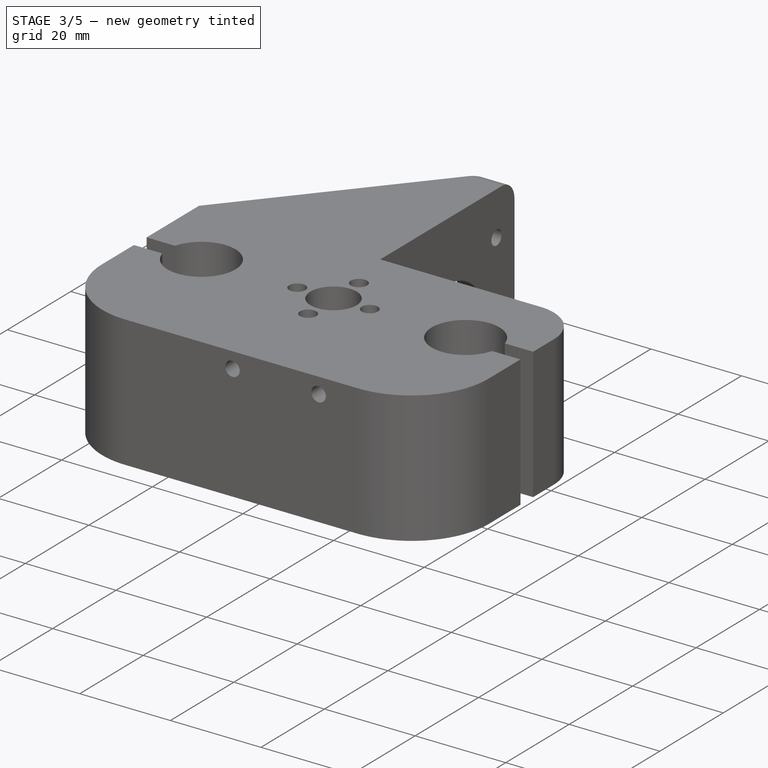
[diagram: stage 3 of 5 — iso view after this stage's code; geometry added in this stage tinted green]
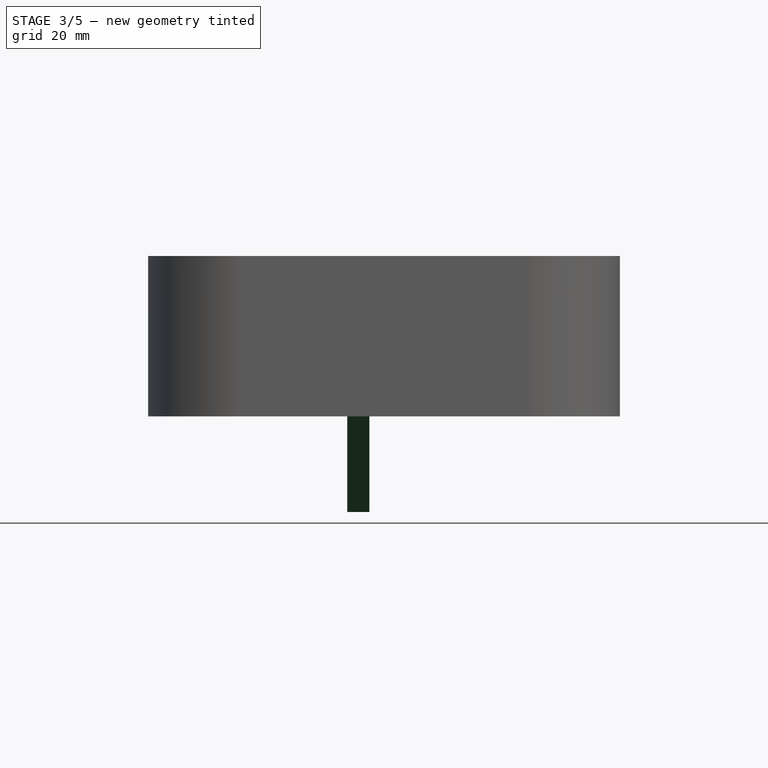
[diagram: stage 3 of 5 — front view after this stage's code; geometry added in this stage tinted green]
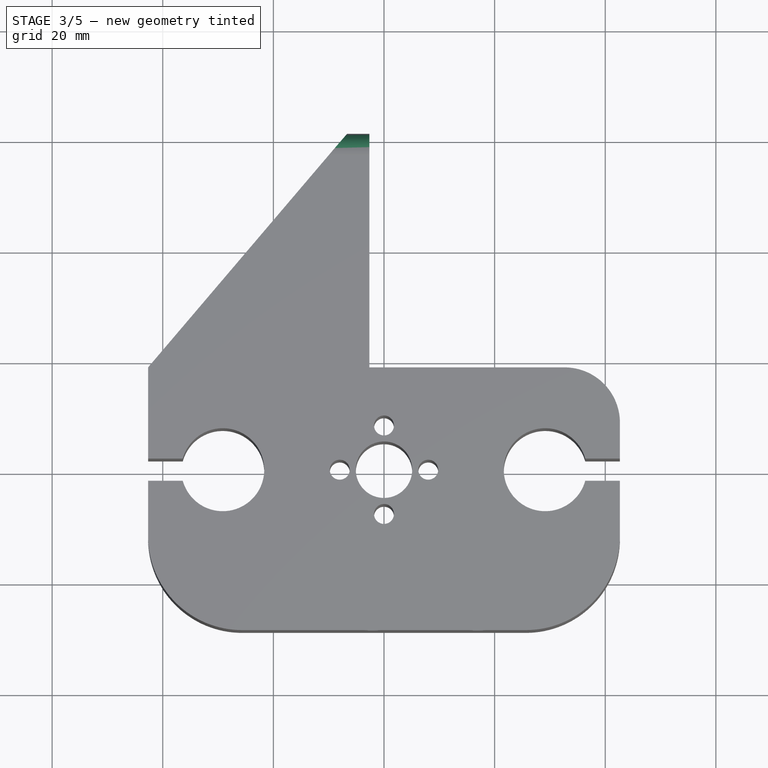
[diagram: stage 3 of 5 — top view after this stage's code; geometry added in this stage tinted green]
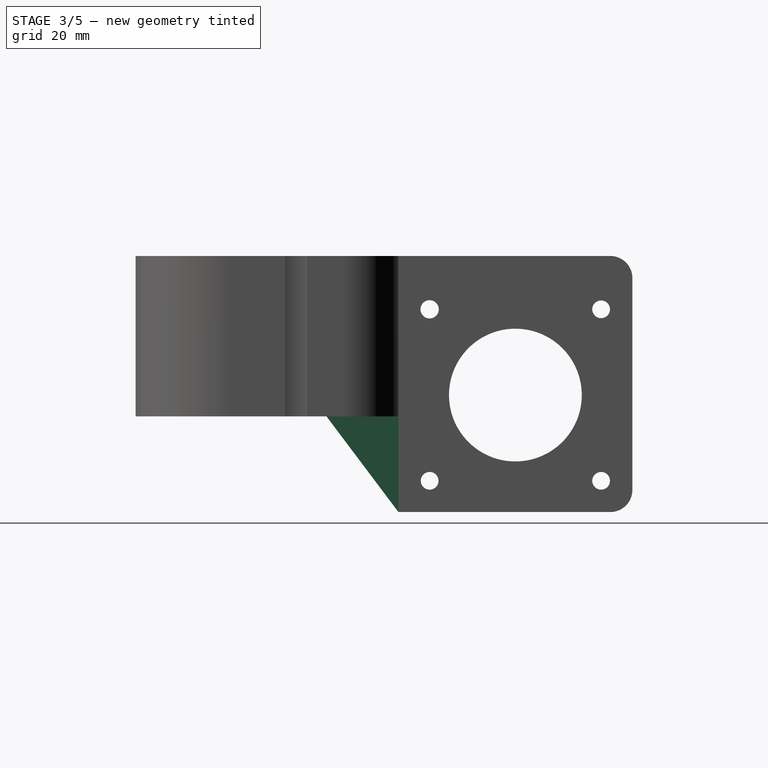
[diagram: stage 3 of 5 — right view after this stage's code; geometry added in this stage tinted green]
FEATURE [PartDesign::Chamfer] Chamfer
  Angle = 45
  Base = -> Pocket002 [Edge35]
  BaseFeature = -> Pocket002
  ChamferType = 1
  FlipDirection = false
  Refine = true
  Size = 13
  Size2 = 17.29
  SupportTransform = false
  Suppressed = false
  UseAllEdges = false
FEATURE [PartDesign::Fillet] Fillet
  Base = -> Chamfer [Edge97]
  BaseFeature = -> Chamfer
  Radius = 4
  Refine = true
  SupportTransform = false
  Suppressed = false
  UseAllEdges = false
FEATURE [PartDesign::Fillet] Fillet001
  Base = -> Fillet [Edge15]
  BaseFeature = -> Fillet
  Radius = 4
  Refine = true
  SupportTransform = false
  Suppressed = false
  UseAllEdges = false
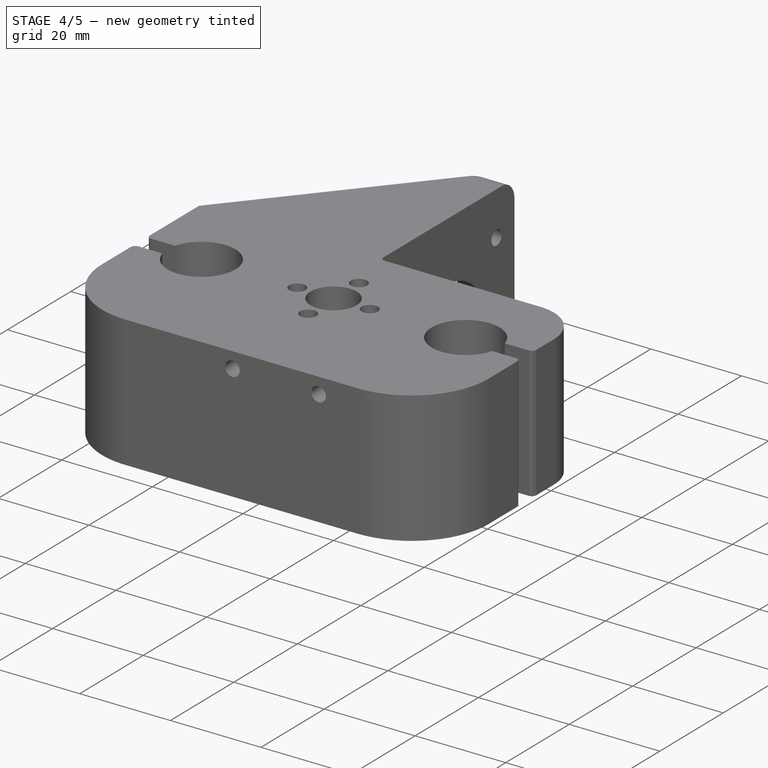
[diagram: stage 4 of 5 — iso view after this stage's code; geometry added in this stage tinted green]
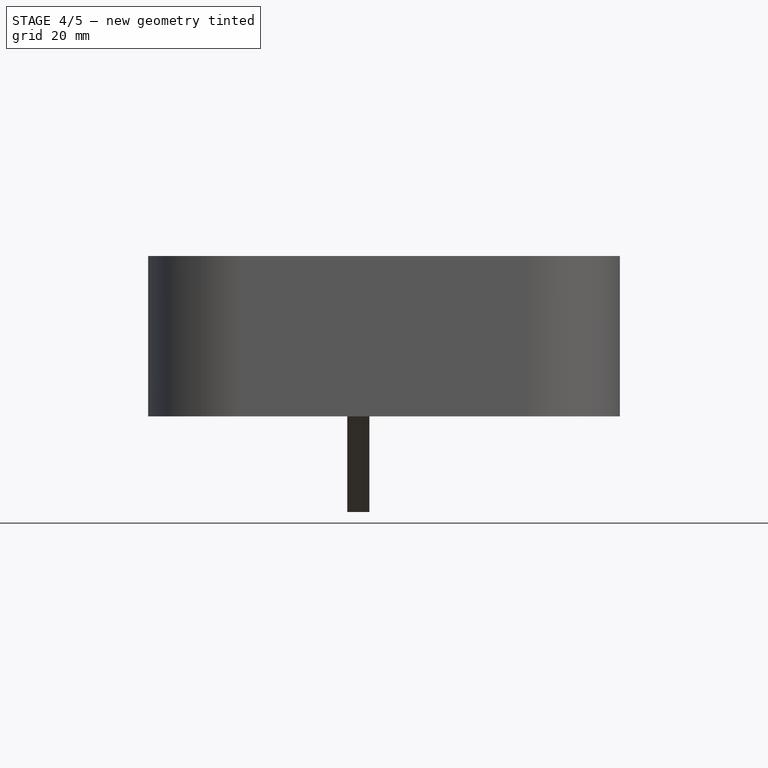
[diagram: stage 4 of 5 — front view after this stage's code; geometry added in this stage tinted green]
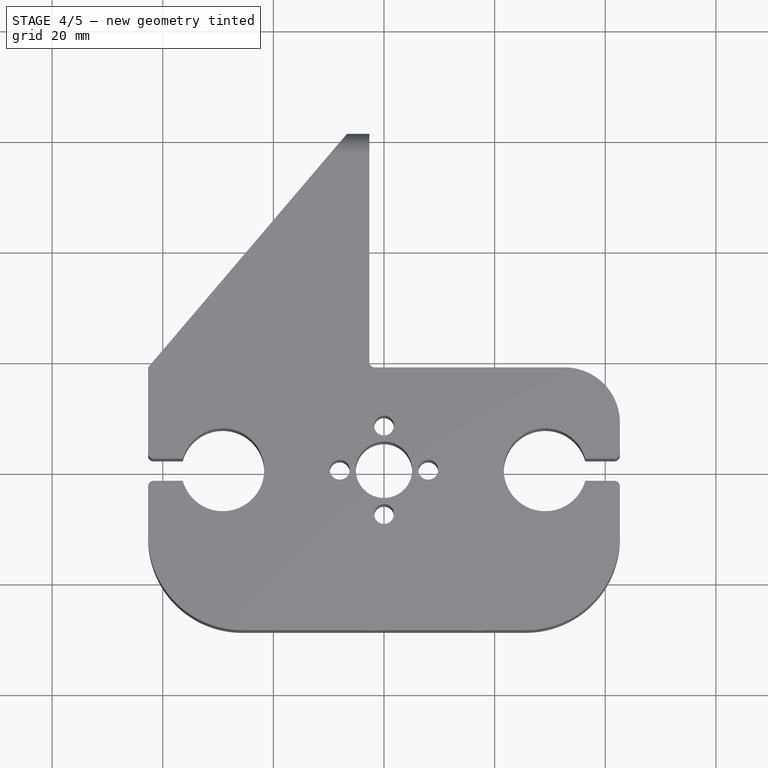
[diagram: stage 4 of 5 — top view after this stage's code; geometry added in this stage tinted green]
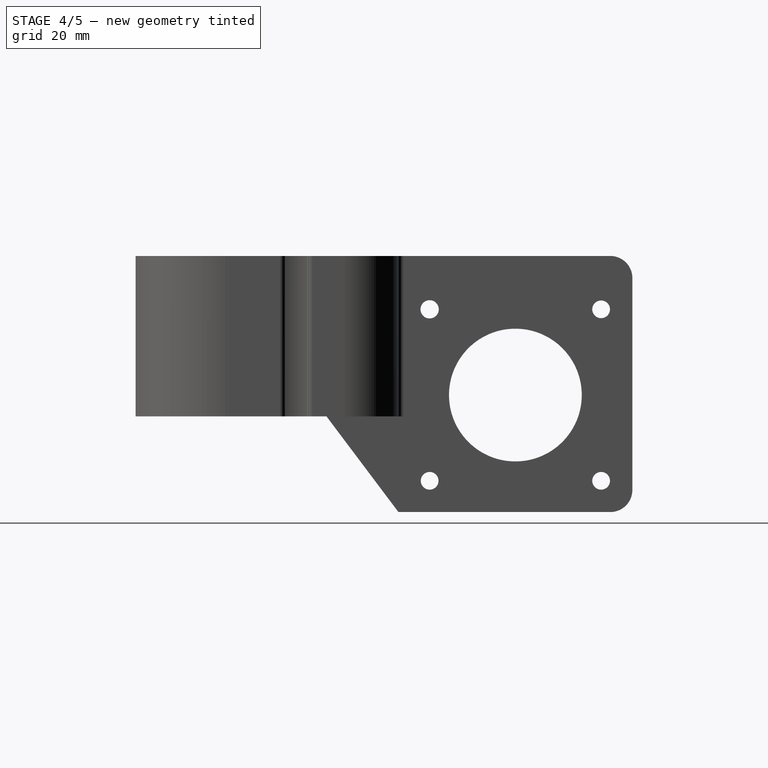
[diagram: stage 4 of 5 — right view after this stage's code; geometry added in this stage tinted green]
FEATURE [PartDesign::Fillet] Fillet002
  Base = -> Fillet001 [Edge86,Edge90]
  BaseFeature = -> Fillet001
  Radius = 9
  Refine = true
  SupportTransform = false
  Suppressed = false
  UseAllEdges = false
FEATURE [PartDesign::Fillet] Fillet003
  Base = -> Fillet001 [Edge97,Edge89,Edge96,Edge91]
  BaseFeature = -> Fillet001
  Radius = 1
  Refine = true
  SupportTransform = false
  Suppressed = false
  UseAllEdges = false
FEATURE [Sketcher::SketchObject] Sketch007
  ArcFitTolerance = 1e-06
  AttachmentSupport = -> [Fillet003]
  FullyConstrained = true
  MakeInternals = false
  MapMode = 5
  Placement = pos=(0,-29,0) rot=(1,0,0;1.5708rad)
FEATURE [PartDesign::Fillet] Fillet004
  Base = -> Fillet003 [Edge48]
  BaseFeature = -> Fillet003
  Radius = 1
  Refine = true
  SupportTransform = false
  Suppressed = false
  UseAllEdges = false
FEATURE [Sketcher::SketchObject] Sketch008
  ArcFitTolerance = 1e-06
  AttachmentSupport = -> [Fillet004]
  FullyConstrained = true
  MakeInternals = false
  MapMode = 5
  Placement = pos=(-42.65,0,0) rot=(0.57735,-0.57735,-0.57735;2.0944rad)
  sketch-geometry (15):
    g0: LineSegment [constr] StartX=0 StartY=0 StartZ=0 EndX=-3 EndY=0 EndZ=0
    g1: LineSegment [constr] StartX=-3 StartY=0 StartZ=0 EndX=-3 EndY=-29 EndZ=0
    g2: LineSegment [constr] StartX=-3 StartY=-29 StartZ=0 EndX=0 EndY=-29 EndZ=0
    g3: LineSegment [constr] StartX=0 StartY=-29 StartZ=0 EndX=0 EndY=0 EndZ=0
    g4: LineSegment [constr] StartX=-3 StartY=0 StartZ=0 EndX=-18.5 EndY=0 EndZ=0
    g5: LineSegment [constr] StartX=-18.5 StartY=0 StartZ=0 EndX=-18.5 EndY=-29 EndZ=0
    g6: LineSegment [constr] StartX=-18.5 StartY=-29 StartZ=0 EndX=-3 EndY=-29 EndZ=0
    g7: LineSegment [constr] StartX=-3 StartY=-29 StartZ=0 EndX=-3 EndY=0 EndZ=0
    g8: LineSegment [constr] StartX=-18.5 StartY=-14.5 StartZ=0 EndX=-3 EndY=-14.5 EndZ=0
    g9: LineSegment StartX=-15.75 StartY=-18 StartZ=0 EndX=-5.75 EndY=-18 EndZ=0
    g10: LineSegment StartX=-5.75 StartY=-18 StartZ=0 EndX=-5.75 EndY=-11 EndZ=0
    g11: LineSegment StartX=-5.75 StartY=-11 StartZ=0 EndX=-15.75 EndY=-11 EndZ=0
    g12: LineSegment StartX=-15.75 StartY=-11 StartZ=0 EndX=-15.75 EndY=-18 EndZ=0
    g13: GeomPoint [constr] X=-10.75 Y=-14.5 Z=0
    g14: LineSegment [constr] StartX=-10.75 StartY=-14.5 StartZ=0 EndX=-10.75 EndY=-11 EndZ=0
  constraints (38):
    c: Coincident(g0,g1)
    c: Coincident(g1,g2)
    c: Coincident(g2,g3)
    c: Coincident(g3,g0)
    c: Horizontal(g0)
    c: Horizontal(g2)
    c: Vertical(g1)
    c: Vertical(g3)
    c: Distance(g1,g3) = 3
    c: Distance(g0,g2) = 29
    c: Coincident(g0,g-1)
    c: Coincident(g4,g5)
    c: Coincident(g5,g6)
    c: Coincident(g6,g7)
    c: Coincident(g7,g4)
    c: Horizontal(g4)
    c: Horizontal(g6)
    c: Vertical(g5)
    c: Vertical(g7)
    c: Distance(g5,g7) = 15.5
    c: Distance(g4,g6) = 29
    c: Coincident(g4,g0)
    c: Symmetric(g5,g5,g8)
    c: Symmetric(g1,g1,g8)
    c: Coincident(g9,g10)
    c: Coincident(g10,g11)
    c: Coincident(g11,g12)
    c: Coincident(g12,g9)
    c: Horizontal(g9)
    c: Horizontal(g11)
    c: Vertical(g10)
    c: Vertical(g12)
    c: Symmetric(g11,g9,g13)
    c: Distance(g10,g12) = 10
    c: Distance(g9,g11) = 7
    c: Symmetric(g8,g8,g13)
    c: Coincident(g14,g13)
    c: Symmetric(g11,g11,g14)
FEATURE [PartDesign::Pocket] Pocket003
  BaseFeature = -> Fillet004
  Direction = (1,0,0)
  Length = 5
  Length2 = 5
  Profile = -> Sketch008
  ReferenceAxis = -> Sketch008 [N_Axis]
  Refine = true
  Suppressed = false
  Type = 0
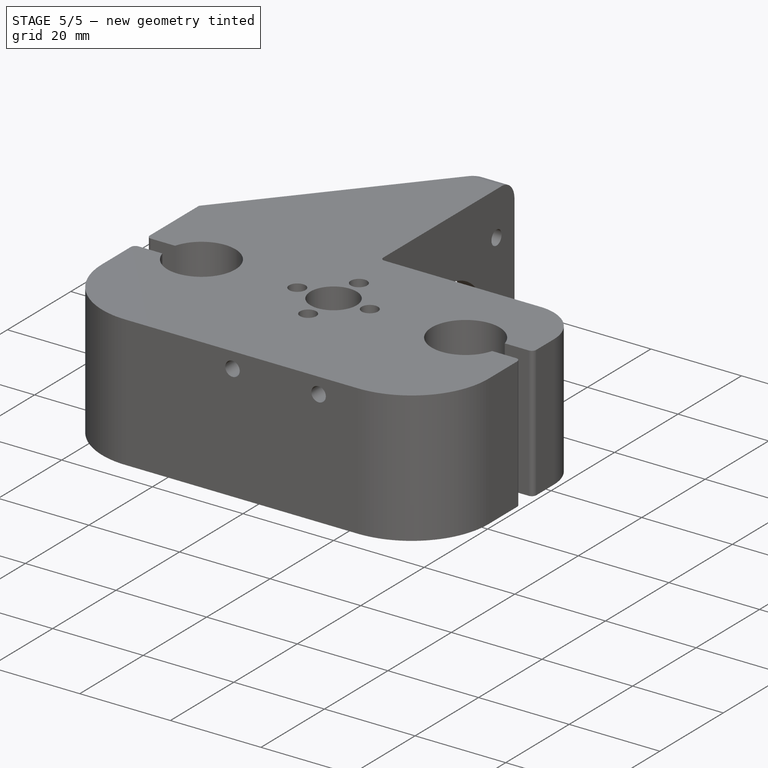
[diagram: stage 5 of 5 — iso view after this stage's code; geometry added in this stage tinted green]
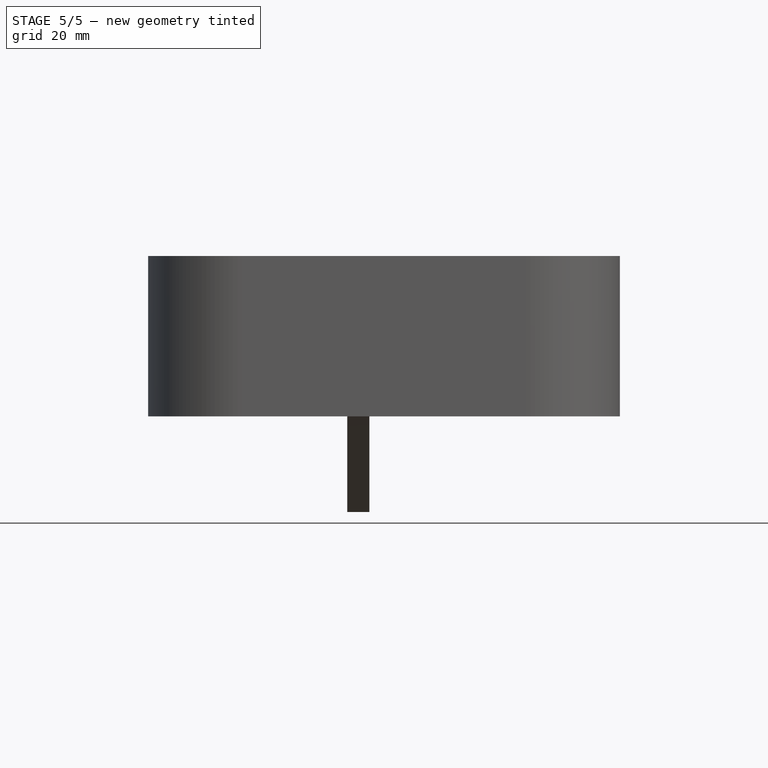
[diagram: stage 5 of 5 — front view after this stage's code; geometry added in this stage tinted green]
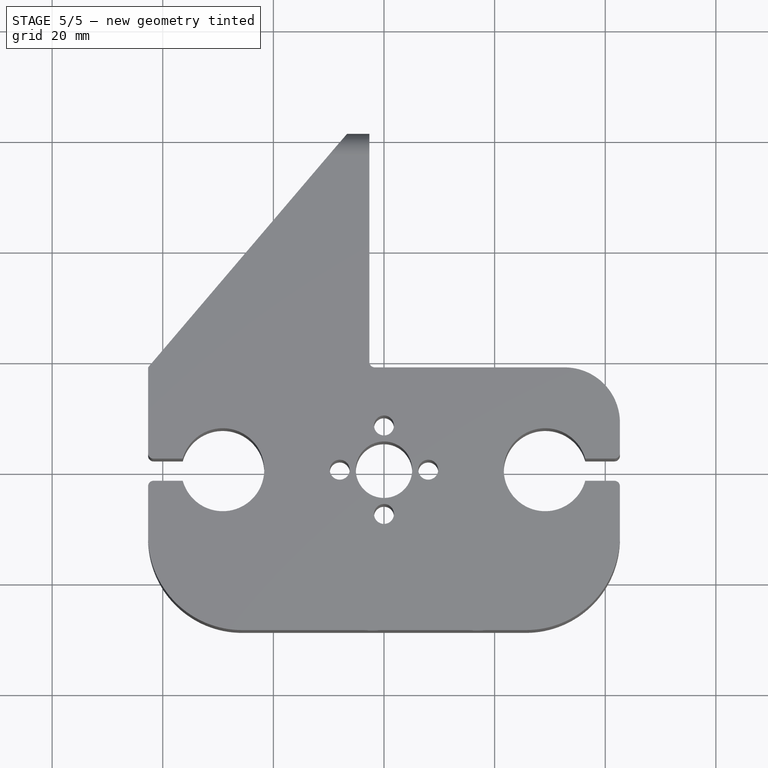
[diagram: stage 5 of 5 — top view after this stage's code; geometry added in this stage tinted green]
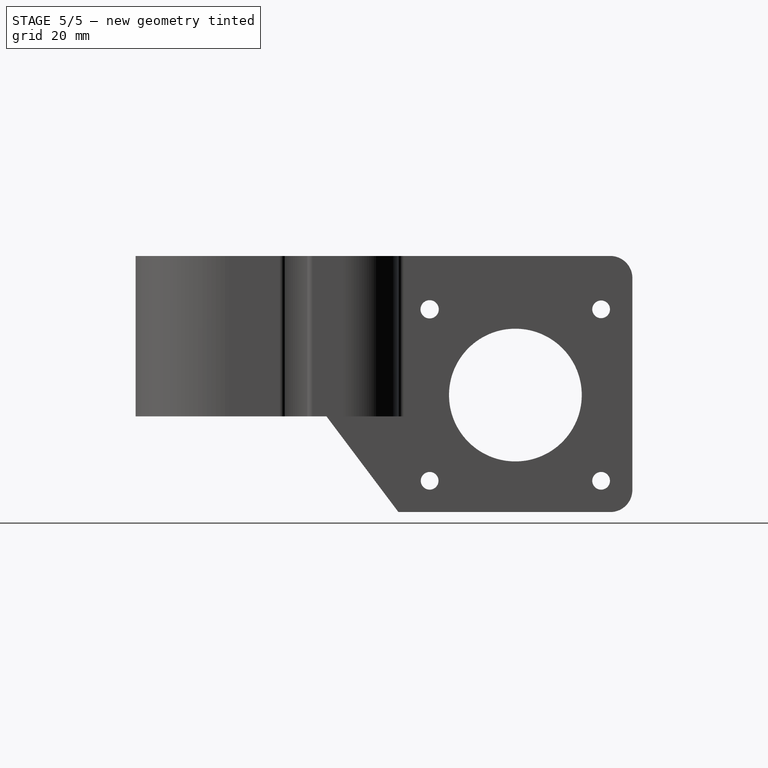
[diagram: stage 5 of 5 — right view after this stage's code; geometry added in this stage tinted green]
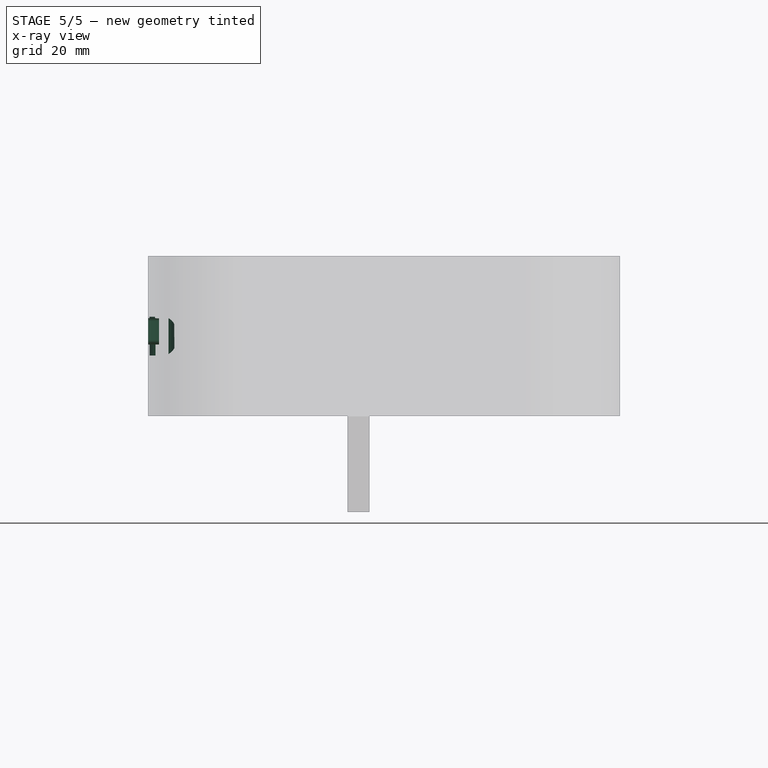
[diagram: stage 5 of 5 — x-ray composite at the front view; earlier geometry ghosted, this stage's added geometry solid]
FEATURE [Sketcher::SketchObject] Sketch009
  ArcFitTolerance = 1e-06
  AttachmentSupport = -> [Pocket003]
  FullyConstrained = true
  MakeInternals = false
  MapMode = 5
  Placement = pos=(-42.65,0,0) rot=(0.57735,-0.57735,-0.57735;2.0944rad)
  sketch-geometry (20):
    g0: LineSegment [constr] StartX=0 StartY=0 StartZ=0 EndX=-3 EndY=0 EndZ=0
    g1: LineSegment [constr] StartX=-3 StartY=0 StartZ=0 EndX=-3 EndY=-29 EndZ=0
    g2: LineSegment [constr] StartX=-3 StartY=-29 StartZ=0 EndX=0 EndY=-29 EndZ=0
    g3: LineSegment [constr] StartX=0 StartY=-29 StartZ=0 EndX=0 EndY=0 EndZ=0
    g4: LineSegment [constr] StartX=-3 StartY=0 StartZ=0 EndX=-18.5 EndY=0 EndZ=0
    g5: LineSegment [constr] StartX=-18.5 StartY=0 StartZ=0 EndX=-18.5 EndY=-29 EndZ=0
    g6: LineSegment [constr] StartX=-18.5 StartY=-29 StartZ=0 EndX=-3 EndY=-29 EndZ=0
    g7: LineSegment [constr] StartX=-3 StartY=-29 StartZ=0 EndX=-3 EndY=0 EndZ=0
    g8: LineSegment [constr] StartX=-18.5 StartY=-14.5 StartZ=0 EndX=-3 EndY=-14.5 EndZ=0
    g9: LineSegment [constr] StartX=-15.75 StartY=-18 StartZ=0 EndX=-5.75 EndY=-18 EndZ=0
    g10: LineSegment [constr] StartX=-5.75 StartY=-18 StartZ=0 EndX=-5.75 EndY=-11 EndZ=0
    g11: LineSegment [constr] StartX=-5.75 StartY=-11 StartZ=0 EndX=-15.75 EndY=-11 EndZ=0
    g12: LineSegment [constr] StartX=-15.75 StartY=-11 StartZ=0 EndX=-15.75 EndY=-18 EndZ=0
    g13: GeomPoint [constr] X=-10.75 Y=-14.5 Z=0
    g14: LineSegment [constr] StartX=-10.75 StartY=-14.5 StartZ=0 EndX=-10.75 EndY=-11 EndZ=0
    g15: LineSegment [constr] StartX=-10.75 StartY=-11 StartZ=0 EndX=-9.75 EndY=-11 EndZ=0
    g16: LineSegment StartX=-9.75 StartY=-11 StartZ=0 EndX=-11.75 EndY=-11 EndZ=0
    g17: LineSegment StartX=-11.75 StartY=-11 StartZ=0 EndX=-11.75 EndY=-16 EndZ=0
    g18: LineSegment StartX=-11.75 StartY=-16 StartZ=0 EndX=-9.75 EndY=-16 EndZ=0
    g19: LineSegment StartX=-9.75 StartY=-16 StartZ=0 EndX=-9.75 EndY=-11 EndZ=0
  constraints (52):
    c: Coincident(g0,g1)
    c: Coincident(g1,g2)
    c: Coincident(g2,g3)
    c: Coincident(g3,g0)
    c: Horizontal(g0)
    c: Horizontal(g2)
    c: Vertical(g1)
    c: Vertical(g3)
    c: Distance(g1,g3) = 3
    c: Distance(g0,g2) = 29
    c: Coincident(g0,g-1)
    c: Coincident(g4,g5)
    c: Coincident(g5,g6)
    c: Coincident(g6,g7)
    c: Coincident(g7,g4)
    c: Horizontal(g4)
    c: Horizontal(g6)
    c: Vertical(g5)
    c: Vertical(g7)
    c: Distance(g5,g7) = 15.5
    c: Distance(g4,g6) = 29
    c: Coincident(g4,g0)
    c: Symmetric(g5,g5,g8)
    c: Symmetric(g1,g1,g8)
    c: Coincident(g9,g10)
    c: Coincident(g10,g11)
    c: Coincident(g11,g12)
    c: Coincident(g12,g9)
    c: Horizontal(g9)
    c: Horizontal(g11)
    c: Vertical(g10)
    c: Vertical(g12)
    c: Symmetric(g11,g9,g13)
    c: Distance(g10,g12) = 10
    c: Distance(g9,g11) = 7
    c: Symmetric(g8,g8,g13)
    c: Coincident(g14,g13)
    c: Symmetric(g11,g11,g14)
    c: Distance(g15) = 1
    c: Coincident(g15,g14)
    c: PointOnObject(g15,g11)
    c: Coincident(g16,g17)
    c: Coincident(g17,g18)
    c: Coincident(g18,g19)
    c: Coincident(g19,g16)
    c: Horizontal(g16)
    c: Horizontal(g18)
    c: Vertical(g17)
    c: Vertical(g19)
    c: Distance(g17,g19) = 2
    c: Distance(g16,g18) = 5
    c: Coincident(g16,g15)
FEATURE [PartDesign::Pad] Pad003
  BaseFeature = -> Pocket003
  Direction = (-1,0,0)
  Length = 2
  Length2 = 10
  Profile = -> Sketch009
  ReferenceAxis = -> Sketch009 [N_Axis]
  Refine = true
  Reversed = true
  Suppressed = false
  Type = 0
FEATURE [PartDesign::Fillet] Fillet005
  Base = -> Pad003 [Edge147,Edge141,Edge136,Edge130,Edge146,Edge139]
  BaseFeature = -> Pad003
  Radius = 2.4
  Refine = true
  SupportTransform = false
  Suppressed = false
  UseAllEdges = false
FEATURE [PartDesign::Fillet] Fillet006
  Base = -> Fillet005 [Edge33,Edge35,Edge31,Edge29]
  BaseFeature = -> Fillet005
  Radius = 0.8
  Refine = true
  SupportTransform = false
  Suppressed = false
  UseAllEdges = false
FEATURE [PartDesign::Body] Body
  AllowCompound = false
  Group = -> [Sketch,Sketch001,Pad,Sketch002,Pocket,Sketch003,Pocket001,Sketch004,Pad001,Sketch005,Pad002,Sketch006,Pocket002,Chamfer,Fillet,Fillet001,Fillet002,Fillet003,Sketch007,Fillet004,Sketch008,Pocket003,Sketch009,Pad003,Fillet005,Fillet006]
  Origin = -> Origin
  Tip = -> Fillet006
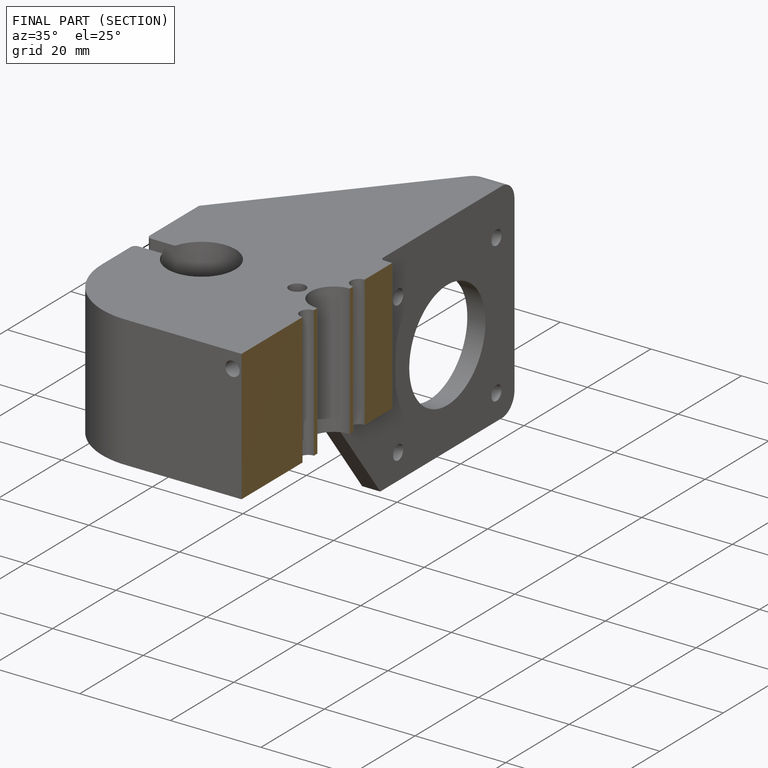
[diagram: finished part — half-section view (interior)]
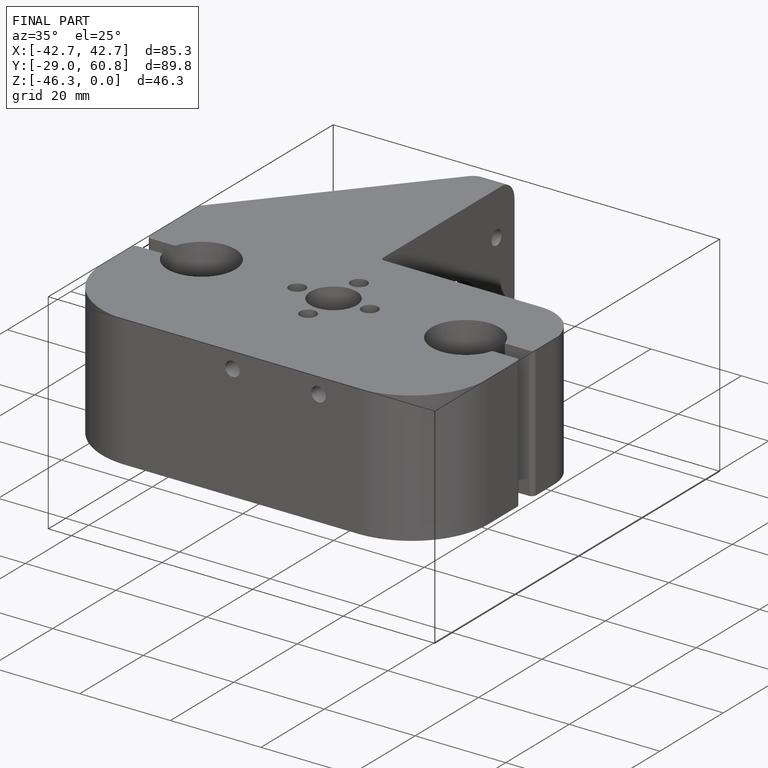
[diagram: finished part — iso view with bounding-box wireframe]
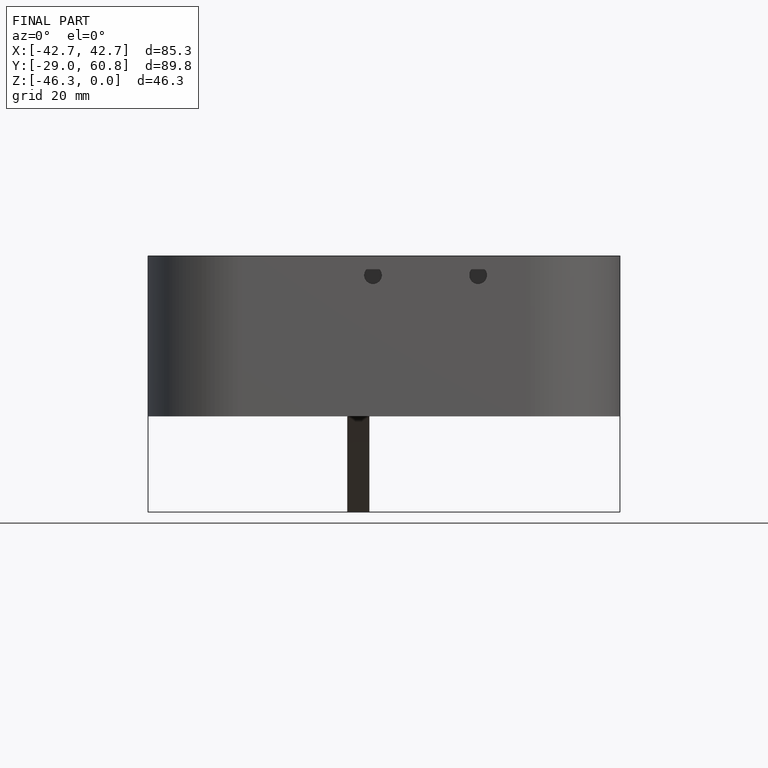
[diagram: finished part — front view with bounding-box wireframe]
